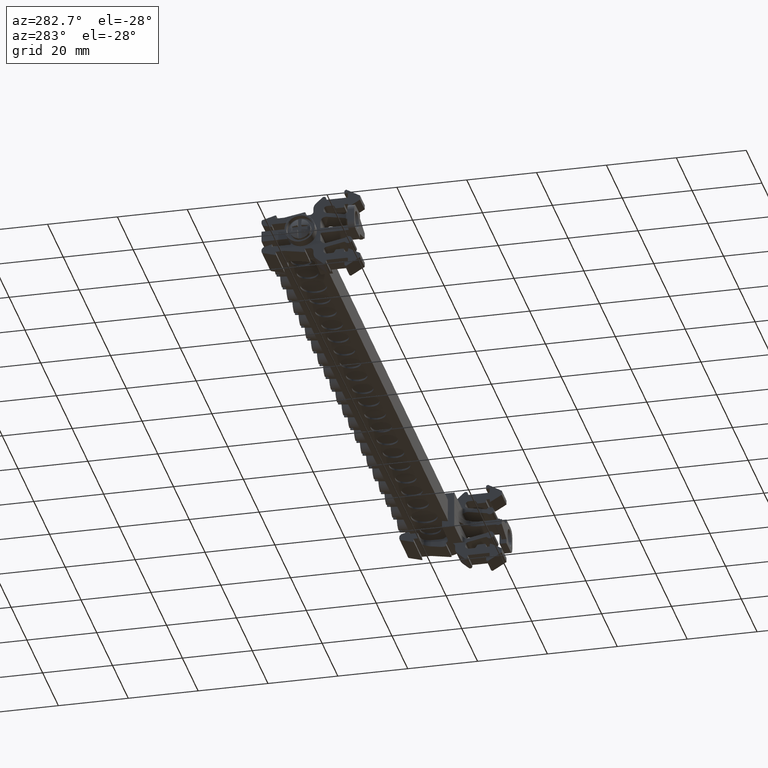
[diagram: clean part render]
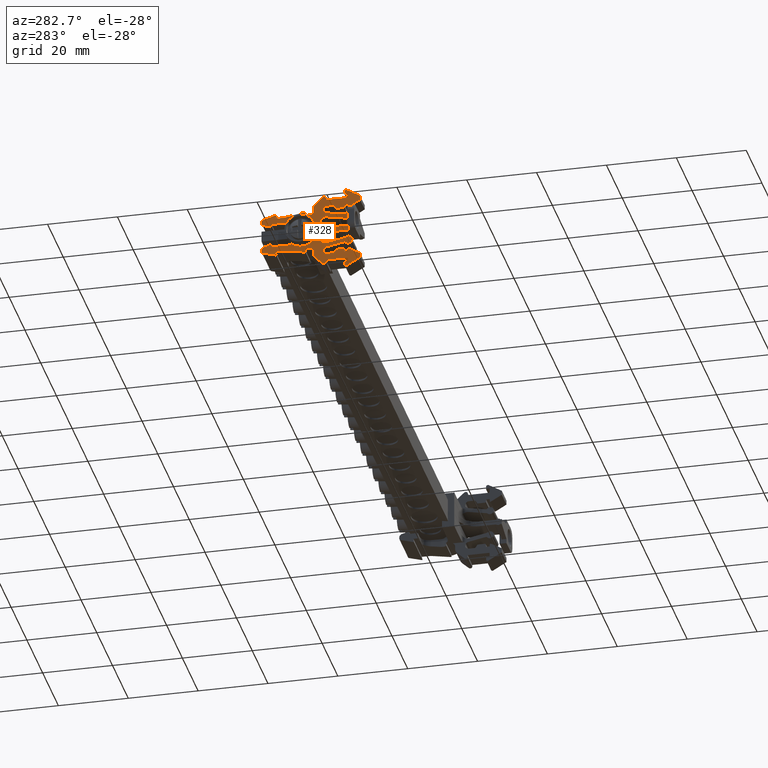
[diagram: same view with one face highlighted and labeled with its STEP entity id]
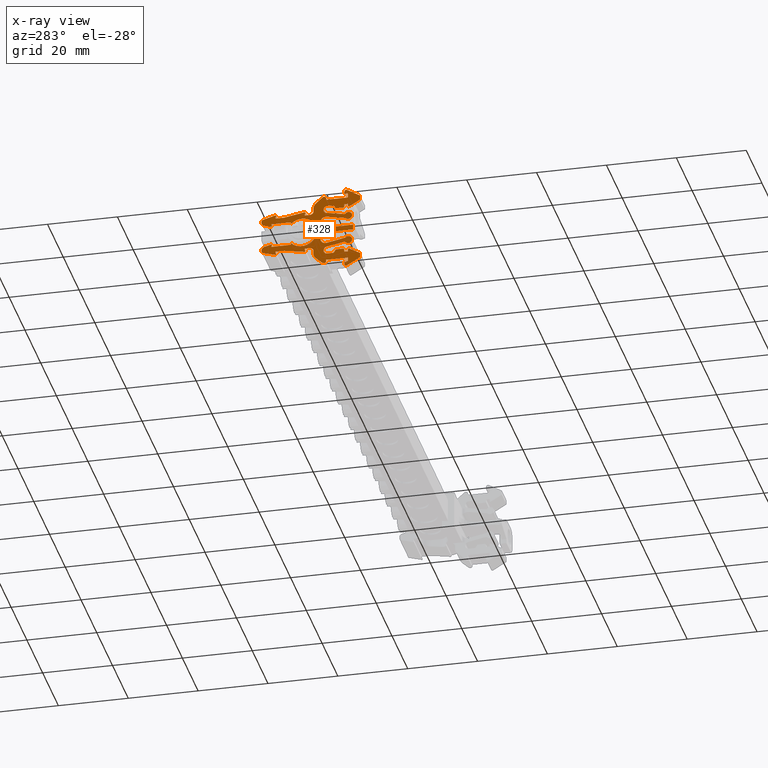
[diagram: x-ray of the same camera — body ghosted, the highlighted face saturated]
A machine part, auxiliary view. The second image highlights one B-rep face of the part: STEP entity #328.
The next image is the same camera in x-ray: the body ghosted, the highlighted face saturated — about 0% of this face is hidden behind the body in this view.
In plain terms, the highlighted planar face has unit normal (-1, -0, -0).
Its self-contained STEP definition (entity closure, byte-faithful):
#16 = EDGE_CURVE ( 'NONE', #6761, #6741, #22040, .T. ) ;
#18 = EDGE_CURVE ( 'NONE', #6798, #12039, #19312, .T. ) ;
#20 = EDGE_CURVE ( 'NONE', #6686, #6732, #22039, .T. ) ;
#21 = EDGE_CURVE ( 'NONE', #6698, #6785, #22021, .T. ) ;
#24 = EDGE_CURVE ( 'NONE', #6290, #12035, #19322, .T. ) ;
#26 = EDGE_CURVE ( 'NONE', #12034, #12001, #22033, .T. ) ;
#39 = EDGE_CURVE ( 'NONE', #12042, #6771, #22073, .T. ) ;
#55 = EDGE_CURVE ( 'NONE', #6687, #6758, #22143, .T. ) ;
#56 = EDGE_CURVE ( 'NONE', #6752, #6743, #22189, .T. ) ;
#57 = EDGE_CURVE ( 'NONE', #12067, #12056, #22193, .T. ) ;
#58 = EDGE_CURVE ( 'NONE', #6770, #6695, #19339, .T. ) ;
#328 = ADVANCED_FACE ( 'NONE', ( #7988 ), #7989, .T. ) ;
#459 = VECTOR ( 'NONE', #10307, 1000.000000000000000 ) ;
#486 = VECTOR ( 'NONE', #10352, 1000.000000000000000 ) ;
#491 = VECTOR ( 'NONE', #9039, 1000.000000000000100 ) ;
#600 = AXIS2_PLACEMENT_3D ( 'NONE', #9300, #9301, #9333 ) ;
#607 = AXIS2_PLACEMENT_3D ( 'NONE', #9335, #9308, #9311 ) ;
#610 = CIRCLE ( 'NONE', #620, 0.2000000000076732100 ) ;
#617 = CIRCLE ( 'NONE', #600, 0.5000000000182358600 ) ;
#618 = CIRCLE ( 'NONE', #607, 1.000000000036881200 ) ;
#620 = AXIS2_PLACEMENT_3D ( 'NONE', #9304, #9331, #9307 ) ;
#621 = VECTOR ( 'NONE', #9340, 1000.000000000000100 ) ;
#634 = AXIS2_PLACEMENT_3D ( 'NONE', #28745, #28757, #28768 ) ;
#663 = CIRCLE ( 'NONE', #668, 1.000000000036825700 ) ;
#668 = AXIS2_PLACEMENT_3D ( 'NONE', #28739, #28715, #28712 ) ;
#674 = CIRCLE ( 'NONE', #634, 0.2000000000074789200 ) ;
#679 = VECTOR ( 'NONE', #28861, 1000.000000000000000 ) ;
#694 = VECTOR ( 'NONE', #28830, 1000.000000000000000 ) ;
#697 = VECTOR ( 'NONE', #28799, 1000.000000000000100 ) ;
#701 = VECTOR ( 'NONE', #28823, 1000.000000000000000 ) ;
#703 = CIRCLE ( 'NONE', #705, 1.000000000036318900 ) ;
#705 = AXIS2_PLACEMENT_3D ( 'NONE', #28794, #28792, #28807 ) ;
#713 = VECTOR ( 'NONE', #28971, 1000.000000000000000 ) ;
#732 = AXIS2_PLACEMENT_3D ( 'NONE', #28970, #29006, #29001 ) ;
#733 = CIRCLE ( 'NONE', #732, 0.5000000000183746400 ) ;
#736 = AXIS2_PLACEMENT_3D ( 'NONE', #28956, #28946, #28928 ) ;
#741 = VECTOR ( 'NONE', #28941, 1000.000000000000000 ) ;
#760 = CIRCLE ( 'NONE', #736, 1.000000000036756200 ) ;
#783 = VECTOR ( 'NONE', #29157, 1000.000000000000000 ) ;
#793 = VECTOR ( 'NONE', #29138, 1000.000000000000000 ) ;
#828 = VECTOR ( 'NONE', #29282, 1000.000000000000200 ) ;
#846 = VECTOR ( 'NONE', #29304, 1000.000000000000100 ) ;
#854 = VECTOR ( 'NONE', #29280, 1000.000000000000000 ) ;
#865 = VECTOR ( 'NONE', #29328, 1000.000000000000000 ) ;
#1131 = EDGE_CURVE ( 'NONE', #6695, #6717, #19230, .T. ) ;
#1132 = EDGE_CURVE ( 'NONE', #6687, #6521, #19235, .T. ) ;
#1139 = EDGE_CURVE ( 'NONE', #6733, #6527, #19243, .T. ) ;
#1149 = EDGE_CURVE ( 'NONE', #6531, #6743, #19254, .T. ) ;
#1164 = EDGE_CURVE ( 'NONE', #6713, #6542, #19274, .T. ) ;
#1183 = EDGE_CURVE ( 'NONE', #6705, #6770, #19587, .T. ) ;
#1185 = EDGE_CURVE ( 'NONE', #6771, #6292, #19759, .T. ) ;
#1193 = EDGE_CURVE ( 'NONE', #6571, #6793, #10323, .T. ) ;
#1195 = EDGE_CURVE ( 'NONE', #6761, #6529, #19238, .T. ) ;
#1197 = EDGE_CURVE ( 'NONE', #6526, #6698, #19608, .T. ) ;
#1202 = EDGE_CURVE ( 'NONE', #6686, #6535, #5314, .T. ) ;
#1204 = EDGE_CURVE ( 'NONE', #6757, #6574, #10378, .T. ) ;
#1206 = EDGE_CURVE ( 'NONE', #6787, #6738, #5337, .T. ) ;
#1210 = EDGE_CURVE ( 'NONE', #6513, #6714, #5323, .T. ) ;
#1218 = EDGE_CURVE ( 'NONE', #6533, #6758, #5346, .T. ) ;
#1220 = EDGE_CURVE ( 'NONE', #6785, #6523, #10493, .T. ) ;
#1221 = EDGE_CURVE ( 'NONE', #6494, #6732, #5328, .T. ) ;
#1225 = EDGE_CURVE ( 'NONE', #6715, #6730, #10553, .T. ) ;
#1227 = EDGE_CURVE ( 'NONE', #6788, #6798, #10511, .T. ) ;
#1235 = EDGE_CURVE ( 'NONE', #6754, #6696, #5348, .T. ) ;
#1241 = EDGE_CURVE ( 'NONE', #6579, #6854, #5394, .T. ) ;
#1244 = EDGE_CURVE ( 'NONE', #6563, #6748, #5373, .T. ) ;
#1252 = EDGE_CURVE ( 'NONE', #6795, #6772, #5366, .T. ) ;
#1258 = EDGE_CURVE ( 'NONE', #6741, #6796, #10475, .T. ) ;
#1261 = EDGE_CURVE ( 'NONE', #6764, #6515, #5356, .T. ) ;
#1264 = EDGE_CURVE ( 'NONE', #6585, #6778, #10496, .T. ) ;
#1274 = EDGE_CURVE ( 'NONE', #6752, #6514, #5445, .T. ) ;
#1276 = EDGE_CURVE ( 'NONE', #6746, #6602, #5446, .T. ) ;
#1277 = EDGE_CURVE ( 'NONE', #6568, #6760, #5431, .T. ) ;
#1279 = EDGE_CURVE ( 'NONE', #6786, #15615, #10611, .T. ) ;
#1281 = EDGE_CURVE ( 'NONE', #6768, #6765, #5425, .T. ) ;
#1431 = EDGE_CURVE ( 'NONE', #6493, #6521, #8639, .T. ) ;
#1436 = EDGE_CURVE ( 'NONE', #6526, #6397, #8638, .T. ) ;
#1442 = EDGE_CURVE ( 'NONE', #6392, #6542, #8678, .T. ) ;
#1446 = EDGE_CURVE ( 'NONE', #6579, #6389, #8674, .T. ) ;
#1453 = EDGE_CURVE ( 'NONE', #6413, #6531, #8691, .T. ) ;
#1463 = EDGE_CURVE ( 'NONE', #6591, #6568, #8749, .T. ) ;
#1464 = EDGE_CURVE ( 'NONE', #6470, #6585, #8752, .T. ) ;
#1466 = EDGE_CURVE ( 'NONE', #6356, #6535, #8741, .T. ) ;
#1469 = EDGE_CURVE ( 'NONE', #6493, #6523, #5708, .T. ) ;
#1472 = EDGE_CURVE ( 'NONE', #6367, #6513, #8731, .T. ) ;
#1478 = EDGE_CURVE ( 'NONE', #6422, #6571, #8792, .T. ) ;
#1480 = EDGE_CURVE ( 'NONE', #6494, #6372, #8793, .T. ) ;
#1481 = EDGE_CURVE ( 'NONE', #6514, #6467, #8763, .T. ) ;
#1484 = EDGE_CURVE ( 'NONE', #6359, #6563, #8780, .T. ) ;
#1489 = EDGE_CURVE ( 'NONE', #6574, #6591, #5719, .T. ) ;
#1492 = EDGE_CURVE ( 'NONE', #6420, #6533, #27246, .T. ) ;
#1501 = EDGE_CURVE ( 'NONE', #6586, #6578, #26876, .T. ) ;
#1503 = EDGE_CURVE ( 'NONE', #6583, #6471, #5677, .T. ) ;
#1508 = EDGE_CURVE ( 'NONE', #6391, #6602, #26916, .T. ) ;
#1511 = EDGE_CURVE ( 'NONE', #6515, #6415, #26914, .T. ) ;
#1523 = EDGE_CURVE ( 'NONE', #6379, #6529, #26954, .T. ) ;
#1526 = EDGE_CURVE ( 'NONE', #6460, #6590, #5747, .T. ) ;
#1533 = EDGE_CURVE ( 'NONE', #6548, #6449, #22896, .T. ) ;
#1535 = EDGE_CURVE ( 'NONE', #6565, #6596, #27022, .T. ) ;
#1543 = EDGE_CURVE ( 'NONE', #6552, #6565, #27042, .T. ) ;
#1550 = EDGE_CURVE ( 'NONE', #6572, #6586, #27047, .T. ) ;
#1581 = EDGE_CURVE ( 'NONE', #6564, #6440, #22880, .T. ) ;
#5208 = EDGE_CURVE ( 'NONE', #12073, #6793, #26842, .T. ) ;
#5210 = EDGE_CURVE ( 'NONE', #11994, #12082, #26770, .T. ) ;
#5247 = DIRECTION ( 'NONE',  ( 7.696129042182730100E-015, -0.8660253871030958500, 0.5000000288929320500 ) ) ;
#5264 = EDGE_CURVE ( 'NONE', #6713, #6715, #26778, .T. ) ;
#5272 = EDGE_CURVE ( 'NONE', #6696, #6705, #10633, .T. ) ;
#5287 = EDGE_CURVE ( 'NONE', #6730, #6714, #30817, .T. ) ;
#5292 = EDGE_CURVE ( 'NONE', #11951, #12051, #30848, .T. ) ;
#5310 = EDGE_CURVE ( 'NONE', #6717, #6733, #30939, .T. ) ;
#5314 = CIRCLE ( 'NONE', #5342, 0.3000000000110622500 ) ;
#5317 = VECTOR ( 'NONE', #10421, 1000.000000000000000 ) ;
#5323 = CIRCLE ( 'NONE', #5332, 0.5000000000183955100 ) ;
#5324 = AXIS2_PLACEMENT_3D ( 'NONE', #10469, #10459, #10476 ) ;
#5326 = VECTOR ( 'NONE', #10497, 1000.000000000000000 ) ;
#5328 = CIRCLE ( 'NONE', #5397, 0.3000000000112565400 ) ;
#5332 = AXIS2_PLACEMENT_3D ( 'NONE', #10470, #10451, #10486 ) ;
#5333 = AXIS2_PLACEMENT_3D ( 'NONE', #10379, #10427, #10411 ) ;
#5337 = CIRCLE ( 'NONE', #5333, 1.500000000055193200 ) ;
#5342 = AXIS2_PLACEMENT_3D ( 'NONE', #10357, #10362, #10365 ) ;
#5346 = CIRCLE ( 'NONE', #5324, 2.000000000073456800 ) ;
#5348 = CIRCLE ( 'NONE', #5402, 1.500000000055352800 ) ;
#5356 = CIRCLE ( 'NONE', #5358, 0.2000000000074164700 ) ;
#5358 = AXIS2_PLACEMENT_3D ( 'NONE', #10438, #10445, #10480 ) ;
#5365 = VECTOR ( 'NONE', #10558, 1000.000000000000000 ) ;
#5366 = CIRCLE ( 'NONE', #5374, 0.5000000000183955100 ) ;
#5368 = VECTOR ( 'NONE', #10462, 1000.000000000000000 ) ;
#5373 = CIRCLE ( 'NONE', #5387, 0.2000000000073956500 ) ;
#5374 = AXIS2_PLACEMENT_3D ( 'NONE', #10942, #10924, #10922 ) ;
#5379 = AXIS2_PLACEMENT_3D ( 'NONE', #10582, #10584, #10591 ) ;
#5381 = VECTOR ( 'NONE', #10502, 1000.000000000000000 ) ;
#5387 = AXIS2_PLACEMENT_3D ( 'NONE', #10610, #10595, #10640 ) ;
#5394 = CIRCLE ( 'NONE', #5379, 1.000000000036978200 ) ;
#5396 = VECTOR ( 'NONE', #10498, 1000.000000000000000 ) ;
#5397 = AXIS2_PLACEMENT_3D ( 'NONE', #10568, #10549, #10552 ) ;
#5402 = AXIS2_PLACEMENT_3D ( 'NONE', #10522, #10525, #10527 ) ;
#5407 = AXIS2_PLACEMENT_3D ( 'NONE', #10581, #10630, #10601 ) ;
#5408 = AXIS2_PLACEMENT_3D ( 'NONE', #10500, #10569, #10557 ) ;
#5411 = VECTOR ( 'NONE', #10620, 1000.000000000000000 ) ;
#5425 = CIRCLE ( 'NONE', #5456, 0.5000000000183052500 ) ;
#5431 = CIRCLE ( 'NONE', #5407, 0.4999998951078846200 ) ;
#5445 = CIRCLE ( 'NONE', #5408, 0.3000000000116104200 ) ;
#5446 = CIRCLE ( 'NONE', #5457, 2.000000000073672200 ) ;
#5456 = AXIS2_PLACEMENT_3D ( 'NONE', #10627, #10583, #10632 ) ;
#5457 = AXIS2_PLACEMENT_3D ( 'NONE', #10501, #10532, #10542 ) ;
#5627 = VECTOR ( 'NONE', #8647, 1000.000000000000000 ) ;
#5634 = VECTOR ( 'NONE', #8671, 1000.000000000000100 ) ;
#5635 = VECTOR ( 'NONE', #8701, 1000.000000000000000 ) ;
#5657 = VECTOR ( 'NONE', #8642, 1000.000000000000000 ) ;
#5659 = VECTOR ( 'NONE', #8675, 1000.000000000000100 ) ;
#5668 = AXIS2_PLACEMENT_3D ( 'NONE', #26896, #26894, #26905 ) ;
#5669 = AXIS2_PLACEMENT_3D ( 'NONE', #8727, #8775, #8787 ) ;
#5670 = VECTOR ( 'NONE', #8770, 1000.000000000000000 ) ;
#5677 = CIRCLE ( 'NONE', #5668, 0.5000000000184058300 ) ;
#5687 = VECTOR ( 'NONE', #8753, 1000.000000000000100 ) ;
#5690 = VECTOR ( 'NONE', #8778, 1000.000000000000200 ) ;
#5691 = VECTOR ( 'NONE', #8767, 1000.000000000000100 ) ;
#5704 = VECTOR ( 'NONE', #8744, 1000.000000000000100 ) ;
#5705 = VECTOR ( 'NONE', #26890, 1000.000000000000200 ) ;
#5707 = VECTOR ( 'NONE', #8738, 1000.000000000000000 ) ;
#5708 = CIRCLE ( 'NONE', #5669, 0.5000000000183885100 ) ;
#5710 = AXIS2_PLACEMENT_3D ( 'NONE', #27270, #27266, #27302 ) ;
#5711 = VECTOR ( 'NONE', #8766, 1000.000000000000100 ) ;
#5712 = VECTOR ( 'NONE', #27277, 1000.000000000000000 ) ;
#5718 = VECTOR ( 'NONE', #8762, 1000.000000000000100 ) ;
#5719 = CIRCLE ( 'NONE', #5710, 0.5000000000187145900 ) ;
#5721 = VECTOR ( 'NONE', #27060, 1000.000000000000000 ) ;
#5728 = VECTOR ( 'NONE', #27048, 1000.000000000000000 ) ;
#5735 = VECTOR ( 'NONE', #26906, 1000.000000000000000 ) ;
#5747 = CIRCLE ( 'NONE', #5773, 0.5000000000186903800 ) ;
#5765 = VECTOR ( 'NONE', #26929, 1000.000000000000000 ) ;
#5769 = VECTOR ( 'NONE', #27015, 1000.000000000000100 ) ;
#5770 = VECTOR ( 'NONE', #26987, 1000.000000000000000 ) ;
#5773 = AXIS2_PLACEMENT_3D ( 'NONE', #26990, #26953, #26955 ) ;
#5937 = VECTOR ( 'NONE', #26769, 1000.000000000000100 ) ;
#5941 = VECTOR ( 'NONE', #26788, 1000.000000000000100 ) ;
#5943 = VECTOR ( 'NONE', #30861, 1000.000000000000100 ) ;
#5964 = VECTOR ( 'NONE', #10645, 1000.000000000000100 ) ;
#5983 = VECTOR ( 'NONE', #5247, 1000.000000000000200 ) ;
#6003 = VECTOR ( 'NONE', #30824, 1000.000000000000000 ) ;
#6013 = VECTOR ( 'NONE', #30950, 1000.000000000000200 ) ;
#6278 = VERTEX_POINT ( 'NONE', #17130 ) ;
#6289 = VERTEX_POINT ( 'NONE', #17131 ) ;
#6290 = VERTEX_POINT ( 'NONE', #17132 ) ;
#6292 = VERTEX_POINT ( 'NONE', #17134 ) ;
#6298 = VERTEX_POINT ( 'NONE', #17176 ) ;
#6299 = VERTEX_POINT ( 'NONE', #17171 ) ;
#6301 = VERTEX_POINT ( 'NONE', #17158 ) ;
#6332 = VERTEX_POINT ( 'NONE', #17186 ) ;
#6336 = VERTEX_POINT ( 'NONE', #17149 ) ;
#6340 = VERTEX_POINT ( 'NONE', #17174 ) ;
#6356 = VERTEX_POINT ( 'NONE', #17195 ) ;
#6359 = VERTEX_POINT ( 'NONE', #17215 ) ;
#6364 = VERTEX_POINT ( 'NONE', #17211 ) ;
#6367 = VERTEX_POINT ( 'NONE', #17244 ) ;
#6372 = VERTEX_POINT ( 'NONE', #17206 ) ;
#6377 = VERTEX_POINT ( 'NONE', #17234 ) ;
#6379 = VERTEX_POINT ( 'NONE', #17224 ) ;
#6386 = VERTEX_POINT ( 'NONE', #17205 ) ;
#6389 = VERTEX_POINT ( 'NONE', #17231 ) ;
#6391 = VERTEX_POINT ( 'NONE', #17217 ) ;
#6392 = VERTEX_POINT ( 'NONE', #17257 ) ;
#6395 = VERTEX_POINT ( 'NONE', #17233 ) ;
#6396 = VERTEX_POINT ( 'NONE', #17213 ) ;
#6397 = VERTEX_POINT ( 'NONE', #17226 ) ;
#6413 = VERTEX_POINT ( 'NONE', #17209 ) ;
#6415 = VERTEX_POINT ( 'NONE', #17221 ) ;
#6420 = VERTEX_POINT ( 'NONE', #22328 ) ;
#6422 = VERTEX_POINT ( 'NONE', #22744 ) ;
#6425 = VERTEX_POINT ( 'NONE', #29387 ) ;
#6432 = VERTEX_POINT ( 'NONE', #7207 ) ;
#6440 = VERTEX_POINT ( 'NONE', #29388 ) ;
#6449 = VERTEX_POINT ( 'NONE', #9383 ) ;
#6460 = VERTEX_POINT ( 'NONE', #9359 ) ;
#6467 = VERTEX_POINT ( 'NONE', #9360 ) ;
#6470 = VERTEX_POINT ( 'NONE', #9387 ) ;
#6471 = VERTEX_POINT ( 'NONE', #9367 ) ;
#6493 = VERTEX_POINT ( 'NONE', #9361 ) ;
#6494 = VERTEX_POINT ( 'NONE', #9371 ) ;
#6513 = VERTEX_POINT ( 'NONE', #9444 ) ;
#6514 = VERTEX_POINT ( 'NONE', #9430 ) ;
#6515 = VERTEX_POINT ( 'NONE', #9425 ) ;
#6521 = VERTEX_POINT ( 'NONE', #9442 ) ;
#6523 = VERTEX_POINT ( 'NONE', #9474 ) ;
#6526 = VERTEX_POINT ( 'NONE', #9460 ) ;
#6527 = VERTEX_POINT ( 'NONE', #9432 ) ;
#6529 = VERTEX_POINT ( 'NONE', #9472 ) ;
#6531 = VERTEX_POINT ( 'NONE', #9415 ) ;
#6533 = VERTEX_POINT ( 'NONE', #9420 ) ;
#6535 = VERTEX_POINT ( 'NONE', #9443 ) ;
#6542 = VERTEX_POINT ( 'NONE', #9414 ) ;
#6548 = VERTEX_POINT ( 'NONE', #9464 ) ;
#6552 = VERTEX_POINT ( 'NONE', #9417 ) ;
#6563 = VERTEX_POINT ( 'NONE', #9445 ) ;
#6564 = VERTEX_POINT ( 'NONE', #9447 ) ;
#6565 = VERTEX_POINT ( 'NONE', #9470 ) ;
#6568 = VERTEX_POINT ( 'NONE', #9455 ) ;
#6571 = VERTEX_POINT ( 'NONE', #9534 ) ;
#6572 = VERTEX_POINT ( 'NONE', #9528 ) ;
#6574 = VERTEX_POINT ( 'NONE', #9479 ) ;
#6578 = VERTEX_POINT ( 'NONE', #9521 ) ;
#6579 = VERTEX_POINT ( 'NONE', #9487 ) ;
#6583 = VERTEX_POINT ( 'NONE', #9513 ) ;
#6585 = VERTEX_POINT ( 'NONE', #9483 ) ;
#6586 = VERTEX_POINT ( 'NONE', #9502 ) ;
#6590 = VERTEX_POINT ( 'NONE', #9515 ) ;
#6591 = VERTEX_POINT ( 'NONE', #9484 ) ;
#6596 = VERTEX_POINT ( 'NONE', #9526 ) ;
#6602 = VERTEX_POINT ( 'NONE', #9538 ) ;
#6686 = VERTEX_POINT ( 'NONE', #9563 ) ;
#6687 = VERTEX_POINT ( 'NONE', #9584 ) ;
#6695 = VERTEX_POINT ( 'NONE', #9545 ) ;
#6696 = VERTEX_POINT ( 'NONE', #9552 ) ;
#6698 = VERTEX_POINT ( 'NONE', #9564 ) ;
#6705 = VERTEX_POINT ( 'NONE', #9610 ) ;
#6713 = VERTEX_POINT ( 'NONE', #9617 ) ;
#6714 = VERTEX_POINT ( 'NONE', #9623 ) ;
#6715 = VERTEX_POINT ( 'NONE', #9641 ) ;
#6717 = VERTEX_POINT ( 'NONE', #9649 ) ;
#6730 = VERTEX_POINT ( 'NONE', #9626 ) ;
#6732 = VERTEX_POINT ( 'NONE', #9661 ) ;
#6733 = VERTEX_POINT ( 'NONE', #9619 ) ;
#6738 = VERTEX_POINT ( 'NONE', #9656 ) ;
#6741 = VERTEX_POINT ( 'NONE', #9638 ) ;
#6743 = VERTEX_POINT ( 'NONE', #9613 ) ;
#6746 = VERTEX_POINT ( 'NONE', #9644 ) ;
#6748 = VERTEX_POINT ( 'NONE', #9648 ) ;
#6752 = VERTEX_POINT ( 'NONE', #9628 ) ;
#6754 = VERTEX_POINT ( 'NONE', #9629 ) ;
#6757 = VERTEX_POINT ( 'NONE', #9630 ) ;
#6758 = VERTEX_POINT ( 'NONE', #9666 ) ;
#6760 = VERTEX_POINT ( 'NONE', #9664 ) ;
#6761 = VERTEX_POINT ( 'NONE', #9665 ) ;
#6764 = VERTEX_POINT ( 'NONE', #9690 ) ;
#6765 = VERTEX_POINT ( 'NONE', #9732 ) ;
#6768 = VERTEX_POINT ( 'NONE', #9702 ) ;
#6770 = VERTEX_POINT ( 'NONE', #9696 ) ;
#6771 = VERTEX_POINT ( 'NONE', #9698 ) ;
#6772 = VERTEX_POINT ( 'NONE', #9669 ) ;
#6778 = VERTEX_POINT ( 'NONE', #9697 ) ;
#6785 = VERTEX_POINT ( 'NONE', #9699 ) ;
#6786 = VERTEX_POINT ( 'NONE', #9686 ) ;
#6787 = VERTEX_POINT ( 'NONE', #9715 ) ;
#6788 = VERTEX_POINT ( 'NONE', #9687 ) ;
#6793 = VERTEX_POINT ( 'NONE', #9701 ) ;
#6795 = VERTEX_POINT ( 'NONE', #9710 ) ;
#6796 = VERTEX_POINT ( 'NONE', #9694 ) ;
#6798 = VERTEX_POINT ( 'NONE', #9722 ) ;
#6854 = VERTEX_POINT ( 'NONE', #9739 ) ;
#7207 = CARTESIAN_POINT ( 'NONE',  ( -212.0303964936862500, -48.21707794392055000, 102.5194420663997300 ) ) ;
#7988 = FACE_OUTER_BOUND ( 'NONE', #21835, .T. ) ;
#7989 = PLANE ( 'NONE',  #19647 ) ;
#8013 = CARTESIAN_POINT ( 'NONE',  ( -212.0303964936862000, -45.88583688173678600, 68.30975947004732500 ) ) ;
#8014 = DIRECTION ( 'NONE',  ( -1.000000000000000000, -1.111883425166246100E-014, -2.470852055924995400E-015 ) ) ;
#8015 = DIRECTION ( 'NONE',  ( 1.111883425166246100E-014, -1.000000000000000000, 0.0000000000000000000 ) ) ;
#8105 = VECTOR ( 'NONE', #26576, 1000.000000000000100 ) ;
#8117 = VECTOR ( 'NONE', #26591, 1000.000000000000100 ) ;
#8119 = VECTOR ( 'NONE', #26616, 1000.000000000000200 ) ;
#8142 = VECTOR ( 'NONE', #26719, 1000.000000000000100 ) ;
#8167 = VECTOR ( 'NONE', #26697, 1000.000000000000000 ) ;
#8186 = VECTOR ( 'NONE', #26651, 1000.000000000000000 ) ;
#8189 = VECTOR ( 'NONE', #26711, 1000.000000000000000 ) ;
#8541 = AXIS2_PLACEMENT_3D ( 'NONE', #25521, #25548, #25523 ) ;
#8610 = VECTOR ( 'NONE', #26291, 1000.000000000000000 ) ;
#8633 = CARTESIAN_POINT ( 'NONE',  ( -212.0303964936862800, -45.88583688173678600, 106.5354419102341300 ) ) ;
#8638 = LINE ( 'NONE', #8644, #5627 ) ;
#8639 = LINE ( 'NONE', #8633, #5657 ) ;
#8642 = DIRECTION ( 'NONE',  ( -1.111883425166246100E-014, 1.000000000000000000, -0.0000000000000000000 ) ) ;
#8644 = CARTESIAN_POINT ( 'NONE',  ( -212.0303964936861700, -55.16053989854657400, 68.30975947004732500 ) ) ;
#8647 = DIRECTION ( 'NONE',  ( -5.942032602617936000E-045, 5.293124366377568200E-031, 1.000000000000000000 ) ) ;
#8668 = CARTESIAN_POINT ( 'NONE',  ( -212.0303964936862000, -48.21710104535917900, 68.30976215696874500 ) ) ;
#8671 = DIRECTION ( 'NONE',  ( 0.0000000000000000000, -1.085070571871616700E-006, -0.9999999999994112500 ) ) ;
#8674 = LINE ( 'NONE', #8668, #5634 ) ;
#8675 = DIRECTION ( 'NONE',  ( 0.0000000000000000000, -0.08715566094580627600, -0.9961947052484767500 ) ) ;
#8678 = LINE ( 'NONE', #8681, #5659 ) ;
#8681 = CARTESIAN_POINT ( 'NONE',  ( -212.0303964936861700, -55.16053996394597900, 103.5194419876537200 ) ) ;
#8691 = LINE ( 'NONE', #8707, #5635 ) ;
#8701 = DIRECTION ( 'NONE',  ( 0.0000000000000000000, -0.4999997977809528300, 0.8660255205356285300 ) ) ;
#8707 = CARTESIAN_POINT ( 'NONE',  ( -212.0303964936861700, -40.97375220469492500, 70.97831986353092800 ) ) ;
#8716 = CARTESIAN_POINT ( 'NONE',  ( -212.0303964936862300, -51.24545566317977600, 103.2694420537113300 ) ) ;
#8727 = CARTESIAN_POINT ( 'NONE',  ( -212.0303964936862800, -48.39155189802377800, 106.0354419102161400 ) ) ;
#8730 = CARTESIAN_POINT ( 'NONE',  ( -212.0303964936862800, -37.25002772318053000, 69.80688172673724500 ) ) ;
#8731 = LINE ( 'NONE', #8758, #5670 ) ;
#8735 = CARTESIAN_POINT ( 'NONE',  ( -212.0303964936862300, -45.74087650197937900, 85.50344835873244200 ) ) ;
#8738 = DIRECTION ( 'NONE',  ( 0.0000000000000000000, 0.9999999999973450100, 2.304348000120185200E-006 ) ) ;
#8741 = LINE ( 'NONE', #8716, #5704 ) ;
#8744 = DIRECTION ( 'NONE',  ( 0.0000000000000000000, -0.4999999694212182200, -0.8660254214391057700 ) ) ;
#8749 = LINE ( 'NONE', #8735, #5707 ) ;
#8752 = LINE ( 'NONE', #8730, #5687 ) ;
#8753 = DIRECTION ( 'NONE',  ( -5.025963780430191900E-016, -0.1736440734325845100, 0.9848084766906402000 ) ) ;
#8758 = CARTESIAN_POINT ( 'NONE',  ( -212.0303964936862000, -54.16053198321218100, 68.30975774108414100 ) ) ;
#8762 = DIRECTION ( 'NONE',  ( 0.0000000000000000000, -0.1736525494605639700, -0.9848069821370308800 ) ) ;
#8763 = LINE ( 'NONE', #8800, #5690 ) ;
#8764 = CARTESIAN_POINT ( 'NONE',  ( -212.0303964936862000, -54.09701029758157600, 102.7932954076425300 ) ) ;
#8766 = DIRECTION ( 'NONE',  ( 0.0000000000000000000, -0.08715569266313325000, 0.9961947024735724500 ) ) ;
#8767 = DIRECTION ( 'NONE',  ( 0.0000000000000000000, -0.08715553781155270500, 0.9961947160213102700 ) ) ;
#8770 = DIRECTION ( 'NONE',  ( 0.0000000000000000000, -2.018709680339304600E-007, 0.9999999999999796800 ) ) ;
#8775 = DIRECTION ( 'NONE',  ( 1.000000000000000000, 1.122594556886344000E-014, 2.537798099621990400E-015 ) ) ;
#8778 = DIRECTION ( 'NONE',  ( 0.0000000000000000000, -0.08715550509949666900, -0.9961947188832369600 ) ) ;
#8780 = LINE ( 'NONE', #8796, #5711 ) ;
#8783 = CARTESIAN_POINT ( 'NONE',  ( -212.0303964936862500, -46.72726588057458500, 68.48369803223982900 ) ) ;
#8787 = DIRECTION ( 'NONE',  ( 0.0000000000000000000, 1.000000000000000000, 0.0000000000000000000 ) ) ;
#8792 = LINE ( 'NONE', #8783, #5718 ) ;
#8793 = LINE ( 'NONE', #8764, #5691 ) ;
#8796 = CARTESIAN_POINT ( 'NONE',  ( -212.0303964936861400, -53.33319914363468000, 67.63282837851792800 ) ) ;
#8800 = CARTESIAN_POINT ( 'NONE',  ( -212.0303964936861400, -55.85016407138748200, 69.20689438627283600 ) ) ;
#9037 = LINE ( 'NONE', #9043, #491 ) ;
#9039 = DIRECTION ( 'NONE',  ( 0.0000000000000000000, -0.9999999999999937800, 1.110506526971359100E-007 ) ) ;
#9043 = CARTESIAN_POINT ( 'NONE',  ( -212.0303964936862000, -45.74083463743838300, 88.51944140780052800 ) ) ;
#9148 = CARTESIAN_POINT ( 'NONE',  ( -212.0303964936866800, -30.45549407222642200, 91.88636542386332500 ) ) ;
#9149 = CARTESIAN_POINT ( 'NONE',  ( -212.0303964936862800, -30.44510178767202600, 91.76910159034784400 ) ) ;
#9156 = CARTESIAN_POINT ( 'NONE',  ( -212.0303964936866800, -30.44846174578567500, 91.81641662640664900 ) ) ;
#9158 = CARTESIAN_POINT ( 'NONE',  ( -212.0303964936863700, -30.48339834810887800, 91.98102457358484700 ) ) ;
#9172 = CARTESIAN_POINT ( 'NONE',  ( -212.0303964936867400, -30.44174182955843100, 91.72178655428894000 ) ) ;
#9180 = CARTESIAN_POINT ( 'NONE',  ( -212.0303964936863700, -30.44258989760698200, 91.69826748458918100 ) ) ;
#9209 = CARTESIAN_POINT ( 'NONE',  ( -212.0303964936862800, -30.44510178767202600, 91.76910159034784400 ) ) ;
#9281 = LINE ( 'NONE', #9287, #621 ) ;
#9287 = CARTESIAN_POINT ( 'NONE',  ( -212.0303964936861400, -54.92581033235777700, 85.16541881952265700 ) ) ;
#9300 = CARTESIAN_POINT ( 'NONE',  ( -212.0303964936861700, -50.81244311099888500, 89.01944198712652700 ) ) ;
#9301 = DIRECTION ( 'NONE',  ( 1.000000000000000000, 1.122594556886344000E-014, 2.537798099621990400E-015 ) ) ;
#9304 = CARTESIAN_POINT ( 'NONE',  ( -212.0303964936861100, -54.96053997683259200, 85.36238036855623100 ) ) ;
#9307 = DIRECTION ( 'NONE',  ( 0.0000000000000000000, 1.000000000000000000, 0.0000000000000000000 ) ) ;
#9308 = DIRECTION ( 'NONE',  ( 1.000000000000000000, 1.122594556886344000E-014, 2.537798099621990400E-015 ) ) ;
#9311 = DIRECTION ( 'NONE',  ( 0.0000000000000000000, 1.000000000000000000, 0.0000000000000000000 ) ) ;
#9331 = DIRECTION ( 'NONE',  ( 1.000000000000000000, 1.122594556886344000E-014, 2.537798099621990400E-015 ) ) ;
#9333 = DIRECTION ( 'NONE',  ( 0.0000000000000000000, 1.000000000000000000, 0.0000000000000000000 ) ) ;
#9335 = CARTESIAN_POINT ( 'NONE',  ( -212.0303964936862800, -44.29758946941943500, 89.76944206850844000 ) ) ;
#9340 = DIRECTION ( 'NONE',  ( -3.571796251056784200E-014, 0.9848077451303186600, 0.1736482223673402900 ) ) ;
#9359 = CARTESIAN_POINT ( 'NONE',  ( -212.0303964936864000, -30.44258989760675900, 100.7694419875523400 ) ) ;
#9360 = CARTESIAN_POINT ( 'NONE',  ( -212.0303964936861700, -54.16053975375923100, 88.51944177150598100 ) ) ;
#9361 = CARTESIAN_POINT ( 'NONE',  ( -212.0303964936862800, -48.39155216239645100, 106.5354419102341800 ) ) ;
#9367 = CARTESIAN_POINT ( 'NONE',  ( -212.0303964936863700, -30.44258989760699000, 91.26944198720973100 ) ) ;
#9371 = CARTESIAN_POINT ( 'NONE',  ( -212.0303964936861700, -54.09701029758157600, 102.7932954076425200 ) ) ;
#9383 = CARTESIAN_POINT ( 'NONE',  ( -212.0303964936863700, -30.53406795506208800, 92.11611772719751900 ) ) ;
#9387 = CARTESIAN_POINT ( 'NONE',  ( -212.0303964936862800, -42.79759071436554800, 101.2694419424453300 ) ) ;
#9414 = CARTESIAN_POINT ( 'NONE',  ( -212.0303964936861400, -55.22216519522433500, 102.8150617048015400 ) ) ;
#9415 = CARTESIAN_POINT ( 'NONE',  ( -212.0303964936861700, -51.59186575260472600, 89.36944192647128200 ) ) ;
#9417 = CARTESIAN_POINT ( 'NONE',  ( -212.0303964936863700, -34.38262018978451800, 102.2694420894122900 ) ) ;
#9420 = CARTESIAN_POINT ( 'NONE',  ( -212.0303964936862800, -45.29758989815920200, 103.1384948378470100 ) ) ;
#9425 = CARTESIAN_POINT ( 'NONE',  ( -212.0303964936861100, -55.16053997684017700, 86.31144210965227600 ) ) ;
#9430 = CARTESIAN_POINT ( 'NONE',  ( -212.0303964936861700, -54.09701030872948700, 89.24558864610632700 ) ) ;
#9432 = CARTESIAN_POINT ( 'NONE',  ( -212.0303964936862300, -48.21707803136069300, 102.3582727133003400 ) ) ;
#9442 = CARTESIAN_POINT ( 'NONE',  ( -212.0303964936862800, -48.24130174602312600, 106.5354419896785300 ) ) ;
#9443 = CARTESIAN_POINT ( 'NONE',  ( -212.0303964936862300, -51.59186573949755000, 102.6694421523491100 ) ) ;
#9444 = CARTESIAN_POINT ( 'NONE',  ( -212.0303964936862000, -54.16053989850947700, 107.5194438271384900 ) ) ;
#9445 = CARTESIAN_POINT ( 'NONE',  ( -212.0303964936861400, -55.22216525566513900, 89.22382233952214400 ) ) ;
#9447 = CARTESIAN_POINT ( 'NONE',  ( -212.0303964936863700, -30.66891902962647600, 99.70702896609982700 ) ) ;
#9455 = CARTESIAN_POINT ( 'NONE',  ( -212.0303964936862300, -48.24130023330281600, 85.50344259688594700 ) ) ;
#9460 = CARTESIAN_POINT ( 'NONE',  ( -212.0303964936861700, -55.16053989854658100, 105.7274420178028400 ) ) ;
#9464 = CARTESIAN_POINT ( 'NONE',  ( -212.0303964936864000, -30.88215368367842800, 92.52646507583762100 ) ) ;
#9470 = CARTESIAN_POINT ( 'NONE',  ( -212.0303964936863700, -34.61891742303019000, 102.2694420894123400 ) ) ;
#9472 = CARTESIAN_POINT ( 'NONE',  ( -212.0303964936861100, -54.16053983258144200, 84.51944025711382800 ) ) ;
#9474 = CARTESIAN_POINT ( 'NONE',  ( -212.0303964936862800, -48.89155204794910500, 106.0354419896604400 ) ) ;
#9479 = CARTESIAN_POINT ( 'NONE',  ( -212.0303964936862000, -48.89155226868257400, 86.00344247954919300 ) ) ;
#9483 = CARTESIAN_POINT ( 'NONE',  ( -212.0303964936863100, -42.97391348253997000, 102.2694420894123400 ) ) ;
#9484 = CARTESIAN_POINT ( 'NONE',  ( -212.0303964936862300, -48.39155111649021300, 85.50344225065569500 ) ) ;
#9487 = CARTESIAN_POINT ( 'NONE',  ( -212.0303964936862000, -48.21707785648052200, 89.68061048292145200 ) ) ;
#9502 = CARTESIAN_POINT ( 'NONE',  ( -212.0303964936863700, -34.61891742303017600, 89.76944207269099300 ) ) ;
#9513 = CARTESIAN_POINT ( 'NONE',  ( -212.0303964936863700, -30.89492487859867600, 90.77171912659397900 ) ) ;
#9515 = CARTESIAN_POINT ( 'NONE',  ( -212.0303964936864000, -30.89492487859806900, 101.2671648481683900 ) ) ;
#9521 = CARTESIAN_POINT ( 'NONE',  ( -212.0303964936863700, -34.44259071128795600, 90.76944183380652500 ) ) ;
#9526 = CARTESIAN_POINT ( 'NONE',  ( -212.0303964936863700, -34.44259071128797000, 101.2694418663309400 ) ) ;
#9528 = CARTESIAN_POINT ( 'NONE',  ( -212.0303964936863700, -34.38262018978446800, 89.76944207269095000 ) ) ;
#9534 = CARTESIAN_POINT ( 'NONE',  ( -212.0303964936862500, -42.97391747135799300, 89.76944207269093600 ) ) ;
#9538 = CARTESIAN_POINT ( 'NONE',  ( -212.0303964936862500, -45.29758968380759400, 88.90038993609964300 ) ) ;
#9545 = CARTESIAN_POINT ( 'NONE',  ( -212.0303964936861400, -54.46873406097621700, 100.5674718350273200 ) ) ;
#9552 = CARTESIAN_POINT ( 'NONE',  ( -212.0303964936862500, -49.05806216479441400, 100.1523731598816500 ) ) ;
#9563 = CARTESIAN_POINT ( 'NONE',  ( -212.0303964936862300, -51.85167330566406500, 102.5194422265380600 ) ) ;
#9564 = CARTESIAN_POINT ( 'NONE',  ( -212.0303964936861700, -54.96083814699186100, 105.5274422914675200 ) ) ;
#9584 = CARTESIAN_POINT ( 'NONE',  ( -212.0303964936862800, -47.90374423001432500, 106.4042982573349000 ) ) ;
#9610 = CARTESIAN_POINT ( 'NONE',  ( -212.0303964936861400, -54.28811458948283800, 99.14341211603225200 ) ) ;
#9613 = CARTESIAN_POINT ( 'NONE',  ( -212.0303964936861700, -51.85167335582665500, 89.51944199458702700 ) ) ;
#9617 = CARTESIAN_POINT ( 'NONE',  ( -212.0303964936861700, -55.52140414134795800, 102.6592877677445400 ) ) ;
#9619 = CARTESIAN_POINT ( 'NONE',  ( -212.0303964936862300, -49.04342984413968800, 101.3734649619419100 ) ) ;
#9623 = CARTESIAN_POINT ( 'NONE',  ( -212.0303964936862000, -54.98107746015380600, 107.9031828437531700 ) ) ;
#9626 = CARTESIAN_POINT ( 'NONE',  ( -212.0303964936861400, -58.64466688617028500, 105.7433548322881300 ) ) ;
#9628 = CARTESIAN_POINT ( 'NONE',  ( -212.0303964936861700, -53.79815184249372400, 89.51944199458702700 ) ) ;
#9629 = CARTESIAN_POINT ( 'NONE',  ( -212.0303964936862500, -48.29758989827022500, 100.0893750927333900 ) ) ;
#9630 = CARTESIAN_POINT ( 'NONE',  ( -212.0303964936862300, -48.89155226868257400, 86.51144221565144200 ) ) ;
#9638 = CARTESIAN_POINT ( 'NONE',  ( -212.0303964936861100, -58.64466689906437600, 86.29552938883703900 ) ) ;
#9641 = CARTESIAN_POINT ( 'NONE',  ( -212.0303964936861400, -58.64466688617028500, 104.4625044931515100 ) ) ;
#9644 = CARTESIAN_POINT ( 'NONE',  ( -212.0303964936862300, -45.94735969027860300, 87.42496512072487700 ) ) ;
#9648 = CARTESIAN_POINT ( 'NONE',  ( -212.0303964936861400, -55.52140419083288900, 89.37959624491412600 ) ) ;
#9649 = CARTESIAN_POINT ( 'NONE',  ( -212.0303964936861700, -54.01132721909093700, 100.4107291316594700 ) ) ;
#9656 = CARTESIAN_POINT ( 'NONE',  ( -212.0303964936862300, -48.29758989826977000, 91.94950888202943400 ) ) ;
#9661 = CARTESIAN_POINT ( 'NONE',  ( -212.0303964936861700, -53.79815188276408100, 102.5194421477568500 ) ) ;
#9664 = CARTESIAN_POINT ( 'NONE',  ( -212.0303964936862300, -47.90374403084724300, 85.63458624974681800 ) ) ;
#9665 = CARTESIAN_POINT ( 'NONE',  ( -212.0303964936861100, -54.98107747304678100, 84.13570119003044600 ) ) ;
#9666 = CARTESIAN_POINT ( 'NONE',  ( -212.0303964936862800, -45.94735960211291100, 104.6139190792378600 ) ) ;
#9669 = CARTESIAN_POINT ( 'NONE',  ( -212.0303964936861700, -54.46873406097626000, 91.47141213973510800 ) ) ;
#9686 = CARTESIAN_POINT ( 'NONE',  ( -212.0303964936863100, -38.84917716076355300, 99.27182284285993300 ) ) ;
#9687 = CARTESIAN_POINT ( 'NONE',  ( -212.0303964936862800, -38.84917656336750700, 93.00656155357300700 ) ) ;
#9690 = CARTESIAN_POINT ( 'NONE',  ( -212.0303964936861100, -54.96065835822072600, 86.51144207265699000 ) ) ;
#9694 = CARTESIAN_POINT ( 'NONE',  ( -212.0303964936861100, -58.64466689906439000, 87.57637972797392900 ) ) ;
#9696 = CARTESIAN_POINT ( 'NONE',  ( -212.0303964936861700, -54.53964225596945400, 99.01913605656295700 ) ) ;
#9697 = CARTESIAN_POINT ( 'NONE',  ( -212.0303964936862800, -42.57940777531151600, 102.2694422068198300 ) ) ;
#9698 = CARTESIAN_POINT ( 'NONE',  ( -212.0303964936861400, -56.24258989762205400, 95.26944206990057800 ) ) ;
#9699 = CARTESIAN_POINT ( 'NONE',  ( -212.0303964936862500, -48.89155219785598000, 105.5274422914675200 ) ) ;
#9701 = CARTESIAN_POINT ( 'NONE',  ( -212.0303964936862800, -42.57940837854732100, 89.76944231880826000 ) ) ;
#9702 = CARTESIAN_POINT ( 'NONE',  ( -212.0303964936861700, -54.53964225596927000, 93.01974791819932900 ) ) ;
#9710 = CARTESIAN_POINT ( 'NONE',  ( -212.0303964936861700, -54.01132721909596100, 91.62815484310375800 ) ) ;
#9715 = CARTESIAN_POINT ( 'NONE',  ( -212.0303964936862300, -49.05806214138775100, 91.88651059802461400 ) ) ;
#9722 = CARTESIAN_POINT ( 'NONE',  ( -212.0303964936862800, -38.84917684424223000, 92.76706124230771900 ) ) ;
#9732 = CARTESIAN_POINT ( 'NONE',  ( -212.0303964936861700, -54.28811458948297300, 92.89547185873000500 ) ) ;
#9739 = CARTESIAN_POINT ( 'NONE',  ( -212.0303964936862300, -49.04342985372464600, 90.66541880934158800 ) ) ;
#9807 = CARTESIAN_POINT ( 'NONE',  ( -212.0303964936862300, -49.21707803139668200, 102.3582727133003400 ) ) ;
#9820 = DIRECTION ( 'NONE',  ( 0.0000000000000000000, 1.000000000000000000, 0.0000000000000000000 ) ) ;
#9865 = DIRECTION ( 'NONE',  ( 1.000000000000000000, 1.122594556886344000E-014, 2.537798099621990400E-015 ) ) ;
#9895 = DIRECTION ( 'NONE',  ( 1.000000000000000000, 1.122594556886344000E-014, 2.537798099621990400E-015 ) ) ;
#9948 = CARTESIAN_POINT ( 'NONE',  ( -212.0303964936861700, -51.85167342166937500, 89.21944197968693400 ) ) ;
#9962 = DIRECTION ( 'NONE',  ( 0.0000000000000000000, 1.000000000000000000, 0.0000000000000000000 ) ) ;
#10104 = DIRECTION ( 'NONE',  ( 1.000000000000000000, 1.122594556886344000E-014, 2.537798099621990400E-015 ) ) ;
#10134 = CARTESIAN_POINT ( 'NONE',  ( -212.0303964936861400, -55.42140413556569500, 102.8324928451715300 ) ) ;
#10152 = DIRECTION ( 'NONE',  ( 0.0000000000000000000, 1.000000000000000000, 0.0000000000000000000 ) ) ;
#10270 = DIRECTION ( 'NONE',  ( 0.0000000000000000000, -1.000000000000000000, 0.0000000000000000000 ) ) ;
#10280 = DIRECTION ( 'NONE',  ( 1.000000000000000000, 1.123605221868002000E-014, 2.589419078425440300E-015 ) ) ;
#10282 = CARTESIAN_POINT ( 'NONE',  ( -212.0303964936861100, -54.66053991142197800, 84.51944025711382800 ) ) ;
#10284 = DIRECTION ( 'NONE',  ( 0.0000000000000000000, 1.000000000000000000, 0.0000000000000000000 ) ) ;
#10285 = CARTESIAN_POINT ( 'NONE',  ( -212.0303964936862800, -45.88583688173678600, 103.5194419876535400 ) ) ;
#10293 = CARTESIAN_POINT ( 'NONE',  ( -212.0303964936861400, -54.20129050064897300, 98.65100823950773200 ) ) ;
#10297 = CARTESIAN_POINT ( 'NONE',  ( -212.0303964936862500, -45.74083688173678300, 89.76944207269093600 ) ) ;
#10302 = LINE ( 'NONE', #10304, #459 ) ;
#10304 = CARTESIAN_POINT ( 'NONE',  ( -212.0303964936861400, -56.66053995209397700, 68.30975947004732500 ) ) ;
#10307 = DIRECTION ( 'NONE',  ( 5.942032602617936000E-045, -5.293124366377568200E-031, -1.000000000000000000 ) ) ;
#10308 = DIRECTION ( 'NONE',  ( 1.000000000000000000, 1.122594556886344000E-014, 2.537798099621990400E-015 ) ) ;
#10309 = LINE ( 'NONE', #10285, #486 ) ;
#10319 = DIRECTION ( 'NONE',  ( 1.000000000000000000, 1.122594556886344000E-014, 2.537798099621990400E-015 ) ) ;
#10323 = LINE ( 'NONE', #10297, #19667 ) ;
#10337 = DIRECTION ( 'NONE',  ( -1.110800016216158400E-043, 1.000000000000000000, 4.377022807218643800E-029 ) ) ;
#10344 = CARTESIAN_POINT ( 'NONE',  ( -212.0303964936861400, -56.24258989762198300, 94.24944204099094200 ) ) ;
#10348 = DIRECTION ( 'NONE',  ( 0.0000000000000000000, 1.000000000000000000, 0.0000000000000000000 ) ) ;
#10352 = DIRECTION ( 'NONE',  ( 1.111883425166246100E-014, -1.000000000000000000, 0.0000000000000000000 ) ) ;
#10357 = CARTESIAN_POINT ( 'NONE',  ( -212.0303964936862300, -51.85167331780618800, 102.8194422265491600 ) ) ;
#10362 = DIRECTION ( 'NONE',  ( 1.000000000000000000, 1.122594556886344000E-014, 2.537798099621990400E-015 ) ) ;
#10365 = DIRECTION ( 'NONE',  ( 0.0000000000000000000, 1.000000000000000000, 0.0000000000000000000 ) ) ;
#10370 = DIRECTION ( 'NONE',  ( 0.0000000000000000000, 1.000000000000000000, 0.0000000000000000000 ) ) ;
#10378 = LINE ( 'NONE', #10400, #5317 ) ;
#10379 = CARTESIAN_POINT ( 'NONE',  ( -212.0303964936862300, -48.79759029975507900, 93.36372230251451800 ) ) ;
#10400 = CARTESIAN_POINT ( 'NONE',  ( -212.0303964936862000, -48.89155226868257400, 68.30975947004732500 ) ) ;
#10411 = DIRECTION ( 'NONE',  ( -1.850371707640509100E-014, 1.000000000000000000, 0.0000000000000000000 ) ) ;
#10417 = DIRECTION ( 'NONE',  ( 1.000000000000000000, 1.122594556886344000E-014, 2.537798099621990400E-015 ) ) ;
#10421 = DIRECTION ( 'NONE',  ( 5.942032602617936000E-045, -5.293124366377568200E-031, -1.000000000000000000 ) ) ;
#10427 = DIRECTION ( 'NONE',  ( 1.000000000000000000, 1.122594556886344000E-014, 2.537798099621990400E-015 ) ) ;
#10438 = CARTESIAN_POINT ( 'NONE',  ( -212.0303964936861100, -54.96053997683296900, 86.31144196469043100 ) ) ;
#10439 = CARTESIAN_POINT ( 'NONE',  ( -212.0303964936861700, -54.96053989853928100, 105.7274420690943500 ) ) ;
#10441 = CARTESIAN_POINT ( 'NONE',  ( -212.0303964936860600, -58.64466689906438300, 68.30975947004732500 ) ) ;
#10445 = DIRECTION ( 'NONE',  ( 1.000000000000000000, 1.122594556886344000E-014, 2.537798099621990400E-015 ) ) ;
#10451 = DIRECTION ( 'NONE',  ( 1.000000000000000000, 1.122594556886344000E-014, 2.537798099621990400E-015 ) ) ;
#10452 = CARTESIAN_POINT ( 'NONE',  ( -212.0303964936862800, -45.88583688173678600, 102.2694420894123400 ) ) ;
#10456 = CARTESIAN_POINT ( 'NONE',  ( -212.0303964936861700, -48.89155219785598000, 68.30975947004732500 ) ) ;
#10459 = DIRECTION ( 'NONE',  ( 1.000000000000000000, 1.122594556886344000E-014, 2.537798099621990400E-015 ) ) ;
#10462 = DIRECTION ( 'NONE',  ( -1.111883425166246100E-014, 1.000000000000000000, -0.0000000000000000000 ) ) ;
#10469 = CARTESIAN_POINT ( 'NONE',  ( -212.0303964936862500, -47.29758989823258000, 103.1384943445479200 ) ) ;
#10470 = CARTESIAN_POINT ( 'NONE',  ( -212.0303964936862000, -54.66053989852788000, 107.5194437766707400 ) ) ;
#10475 = LINE ( 'NONE', #10441, #5396 ) ;
#10476 = DIRECTION ( 'NONE',  ( -1.387778780730474800E-014, 1.000000000000000000, 0.0000000000000000000 ) ) ;
#10480 = DIRECTION ( 'NONE',  ( 0.0000000000000000000, 1.000000000000000000, 0.0000000000000000000 ) ) ;
#10486 = DIRECTION ( 'NONE',  ( 0.0000000000000000000, 1.000000000000000000, 0.0000000000000000000 ) ) ;
#10493 = LINE ( 'NONE', #10456, #5326 ) ;
#10496 = LINE ( 'NONE', #10452, #5368 ) ;
#10497 = DIRECTION ( 'NONE',  ( -2.470852055924995400E-015, -2.747299447020945000E-029, 1.000000000000000000 ) ) ;
#10498 = DIRECTION ( 'NONE',  ( -2.470852055924995400E-015, -2.747299447020945000E-029, 1.000000000000000000 ) ) ;
#10500 = CARTESIAN_POINT ( 'NONE',  ( -212.0303964936861700, -53.79815189305297500, 89.21944199457543300 ) ) ;
#10501 = CARTESIAN_POINT ( 'NONE',  ( -212.0303964936862300, -47.29758989823258000, 88.90038993609964300 ) ) ;
#10502 = DIRECTION ( 'NONE',  ( 2.470852055924995400E-015, 2.747299447020945000E-029, -1.000000000000000000 ) ) ;
#10511 = LINE ( 'NONE', #10533, #5381 ) ;
#10522 = CARTESIAN_POINT ( 'NONE',  ( -212.0303964936862500, -48.79758989828857800, 98.67516153030813100 ) ) ;
#10525 = DIRECTION ( 'NONE',  ( 1.000000000000000000, 1.122594556886344000E-014, 2.537798099621990400E-015 ) ) ;
#10527 = DIRECTION ( 'NONE',  ( -1.850371707640311900E-014, 1.000000000000000000, 0.0000000000000000000 ) ) ;
#10532 = DIRECTION ( 'NONE',  ( 1.000000000000000000, 1.122594556886344000E-014, 2.537798099621990400E-015 ) ) ;
#10533 = CARTESIAN_POINT ( 'NONE',  ( -212.0303964936862800, -38.84917648897501900, 68.30975947004732500 ) ) ;
#10542 = DIRECTION ( 'NONE',  ( -1.387778780730325300E-014, 1.000000000000000000, 0.0000000000000000000 ) ) ;
#10549 = DIRECTION ( 'NONE',  ( 1.000000000000000000, 1.122594556886344000E-014, 2.537798099621990400E-015 ) ) ;
#10552 = DIRECTION ( 'NONE',  ( 0.0000000000000000000, 1.000000000000000000, 0.0000000000000000000 ) ) ;
#10553 = LINE ( 'NONE', #10556, #5365 ) ;
#10556 = CARTESIAN_POINT ( 'NONE',  ( -212.0303964936860600, -58.64466688617027800, 68.30975947004732500 ) ) ;
#10557 = DIRECTION ( 'NONE',  ( 0.0000000000000000000, 1.000000000000000000, 0.0000000000000000000 ) ) ;
#10558 = DIRECTION ( 'NONE',  ( -2.470852055924995400E-015, -2.747299447020945000E-029, 1.000000000000000000 ) ) ;
#10568 = CARTESIAN_POINT ( 'NONE',  ( -212.0303964936861700, -53.79815188276398200, 102.8194420689869400 ) ) ;
#10569 = DIRECTION ( 'NONE',  ( 1.000000000000000000, 1.122594556886344000E-014, 2.537798099621990400E-015 ) ) ;
#10581 = CARTESIAN_POINT ( 'NONE',  ( -212.0303964936862300, -48.24130138547668200, 86.00344249199243100 ) ) ;
#10582 = CARTESIAN_POINT ( 'NONE',  ( -212.0303964936862000, -49.21707785651687300, 89.68061102545672700 ) ) ;
#10583 = DIRECTION ( 'NONE',  ( 1.000000000000000000, 1.122594556886344000E-014, 2.537798099621990400E-015 ) ) ;
#10584 = DIRECTION ( 'NONE',  ( 1.000000000000000000, 1.122594556886344000E-014, 2.537798099621990400E-015 ) ) ;
#10591 = DIRECTION ( 'NONE',  ( 0.0000000000000000000, 1.000000000000000000, 0.0000000000000000000 ) ) ;
#10595 = DIRECTION ( 'NONE',  ( 1.000000000000000000, 1.122594556886344000E-014, 2.537798099621990400E-015 ) ) ;
#10601 = DIRECTION ( 'NONE',  ( 0.0000000000000000000, 1.000000000000000000, 0.0000000000000000000 ) ) ;
#10610 = CARTESIAN_POINT ( 'NONE',  ( -212.0303964936861400, -55.42140419284257300, 89.20639116298833900 ) ) ;
#10611 = LINE ( 'NONE', #10614, #5411 ) ;
#10614 = CARTESIAN_POINT ( 'NONE',  ( -212.0303964936862800, -38.84917712201923500, 68.30975947004732500 ) ) ;
#10620 = DIRECTION ( 'NONE',  ( 2.470852055924995400E-015, 2.747299447020945000E-029, -1.000000000000000000 ) ) ;
#10627 = CARTESIAN_POINT ( 'NONE',  ( -212.0303964936861700, -54.20129050064878800, 93.38787573525455300 ) ) ;
#10630 = DIRECTION ( 'NONE',  ( 1.000000000000000000, 1.122594556886344000E-014, 2.537798099621990400E-015 ) ) ;
#10632 = DIRECTION ( 'NONE',  ( 0.0000000000000000000, 1.000000000000000000, 0.0000000000000000000 ) ) ;
#10633 = LINE ( 'NONE', #10643, #5964 ) ;
#10640 = DIRECTION ( 'NONE',  ( 0.0000000000000000000, 1.000000000000000000, 0.0000000000000000000 ) ) ;
#10643 = CARTESIAN_POINT ( 'NONE',  ( -212.0303964936862500, -49.05806216479418700, 100.1523731598817300 ) ) ;
#10645 = DIRECTION ( 'NONE',  ( 1.042172147552925000E-014, -0.9818955014187130700, -0.1894233995410651600 ) ) ;
#10662 = DIRECTION ( 'NONE',  ( 1.000000000000000000, 1.122594556886344000E-014, 2.537798099621990400E-015 ) ) ;
#10663 = DIRECTION ( 'NONE',  ( 0.0000000000000000000, 1.000000000000000000, 0.0000000000000000000 ) ) ;
#10922 = DIRECTION ( 'NONE',  ( 0.0000000000000000000, 1.000000000000000000, 0.0000000000000000000 ) ) ;
#10924 = DIRECTION ( 'NONE',  ( 1.000000000000000000, 1.122594556886344000E-014, 2.537798099621990400E-015 ) ) ;
#10942 = CARTESIAN_POINT ( 'NONE',  ( -212.0303964936861700, -54.09815130793169400, 91.13575096657936600 ) ) ;
#10953 = EDGE_CURVE ( 'NONE', #6289, #6278, #10309, .T. ) ;
#10957 = EDGE_CURVE ( 'NONE', #6290, #6292, #10302, .T. ) ;
#11004 = EDGE_CURVE ( 'NONE', #6336, #6340, #9037, .T. ) ;
#11027 = EDGE_CURVE ( 'NONE', #6377, #6332, #22894, .T. ) ;
#11049 = EDGE_CURVE ( 'NONE', #6332, #6298, #22895, .T. ) ;
#11078 = EDGE_CURVE ( 'NONE', #6413, #6340, #617, .T. ) ;
#11079 = EDGE_CURVE ( 'NONE', #6395, #6379, #9281, .T. ) ;
#11080 = EDGE_CURVE ( 'NONE', #6415, #6395, #610, .T. ) ;
#11086 = EDGE_CURVE ( 'NONE', #6364, #6391, #618, .T. ) ;
#11108 = EDGE_CURVE ( 'NONE', #6420, #6396, #663, .T. ) ;
#11121 = EDGE_CURVE ( 'NONE', #6301, #6299, #22928, .T. ) ;
#11125 = EDGE_CURVE ( 'NONE', #6299, #6386, #22970, .T. ) ;
#11126 = EDGE_CURVE ( 'NONE', #6425, #6397, #674, .T. ) ;
#11137 = EDGE_CURVE ( 'NONE', #6336, #6389, #703, .T. ) ;
#11138 = EDGE_CURVE ( 'NONE', #6392, #6372, #28781, .T. ) ;
#11140 = EDGE_CURVE ( 'NONE', #6425, #6367, #28803, .T. ) ;
#11143 = EDGE_CURVE ( 'NONE', #6396, #6470, #28811, .T. ) ;
#11154 = EDGE_CURVE ( 'NONE', #6359, #6467, #28854, .T. ) ;
#11168 = EDGE_CURVE ( 'NONE', #6440, #6301, #22968, .T. ) ;
#11181 = EDGE_CURVE ( 'NONE', #6422, #6364, #28944, .T. ) ;
#11183 = EDGE_CURVE ( 'NONE', #6432, #6289, #760, .T. ) ;
#11196 = EDGE_CURVE ( 'NONE', #6298, #6471, #29009, .T. ) ;
#11197 = EDGE_CURVE ( 'NONE', #6278, #6356, #733, .T. ) ;
#11225 = EDGE_CURVE ( 'NONE', #6449, #6377, #22974, .T. ) ;
#11244 = EDGE_CURVE ( 'NONE', #6527, #6432, #29113, .T. ) ;
#11255 = EDGE_CURVE ( 'NONE', #6386, #6460, #29154, .T. ) ;
#11284 = EDGE_CURVE ( 'NONE', #6583, #6572, #29247, .T. ) ;
#11290 = EDGE_CURVE ( 'NONE', #6578, #11994, #29242, .T. ) ;
#11300 = EDGE_CURVE ( 'NONE', #6552, #6590, #29336, .T. ) ;
#11301 = EDGE_CURVE ( 'NONE', #11998, #6596, #29325, .T. ) ;
#11303 = EDGE_CURVE ( 'NONE', #6564, #12005, #22954, .T. ) ;
#11326 = EDGE_CURVE ( 'NONE', #11995, #6548, #22942, .T. ) ;
#11386 = EDGE_CURVE ( 'NONE', #12001, #6754, #22979, .T. ) ;
#11951 = VERTEX_POINT ( 'NONE', #17641 ) ;
#11994 = VERTEX_POINT ( 'NONE', #17646 ) ;
#11995 = VERTEX_POINT ( 'NONE', #17647 ) ;
#11998 = VERTEX_POINT ( 'NONE', #17681 ) ;
#12001 = VERTEX_POINT ( 'NONE', #17649 ) ;
#12005 = VERTEX_POINT ( 'NONE', #17689 ) ;
#12034 = VERTEX_POINT ( 'NONE', #17741 ) ;
#12035 = VERTEX_POINT ( 'NONE', #17723 ) ;
#12039 = VERTEX_POINT ( 'NONE', #17724 ) ;
#12042 = VERTEX_POINT ( 'NONE', #17750 ) ;
#12051 = VERTEX_POINT ( 'NONE', #17695 ) ;
#12056 = VERTEX_POINT ( 'NONE', #17732 ) ;
#12062 = VERTEX_POINT ( 'NONE', #17754 ) ;
#12067 = VERTEX_POINT ( 'NONE', #17747 ) ;
#12070 = VERTEX_POINT ( 'NONE', #17751 ) ;
#12073 = VERTEX_POINT ( 'NONE', #17785 ) ;
#12079 = VERTEX_POINT ( 'NONE', #17772 ) ;
#12082 = VERTEX_POINT ( 'NONE', #17816 ) ;
#12085 = VERTEX_POINT ( 'NONE', #17790 ) ;
#12110 = VERTEX_POINT ( 'NONE', #17806 ) ;
#12113 = VERTEX_POINT ( 'NONE', #17807 ) ;
#12124 = VERTEX_POINT ( 'NONE', #17799 ) ;
#12134 = VERTEX_POINT ( 'NONE', #17771 ) ;
#12168 = VERTEX_POINT ( 'NONE', #17875 ) ;
#12213 = VERTEX_POINT ( 'NONE', #17919 ) ;
#13975 = VECTOR ( 'NONE', #15510, 1000.000000000000100 ) ;
#13988 = EDGE_CURVE ( 'NONE', #15615, #15671, #29500, .T. ) ;
#14061 = VECTOR ( 'NONE', #14513, 999.9999999999998900 ) ;
#14133 = VECTOR ( 'NONE', #14512, 1000.000000000000200 ) ;
#14145 = VECTOR ( 'NONE', #14520, 1000.000000000000100 ) ;
#14149 = VECTOR ( 'NONE', #14499, 1000.000000000000100 ) ;
#14152 = VECTOR ( 'NONE', #14511, 1000.000000000000000 ) ;
#14167 = VECTOR ( 'NONE', #14584, 1000.000000000000000 ) ;
#14170 = VECTOR ( 'NONE', #14590, 1000.000000000000100 ) ;
#14181 = VECTOR ( 'NONE', #14597, 1000.000000000000200 ) ;
#14187 = VECTOR ( 'NONE', #14562, 1000.000000000000100 ) ;
#14304 = CARTESIAN_POINT ( 'NONE',  ( -212.0303964936866000, -30.61442489125268200, 99.77357149301101900 ) ) ;
#14305 = CARTESIAN_POINT ( 'NONE',  ( -212.0303964936863700, -30.66891902962647600, 99.70702896609982700 ) ) ;
#14308 = CARTESIAN_POINT ( 'NONE',  ( -212.0303964936863400, -30.54603215299593100, 99.89768980929972000 ) ) ;
#14311 = CARTESIAN_POINT ( 'NONE',  ( -212.0303964936866000, -30.57509311085167200, 99.83886559089643200 ) ) ;
#14497 = LINE ( 'NONE', #14506, #14061 ) ;
#14498 = CARTESIAN_POINT ( 'NONE',  ( -212.0303964936863100, -38.35285921441583000, 90.51469704490773400 ) ) ;
#14499 = DIRECTION ( 'NONE',  ( 0.0000000000000000000, 0.9848079477298047300, -0.1736470733649434200 ) ) ;
#14500 = CARTESIAN_POINT ( 'NONE',  ( -212.0303964936863400, -37.52930057497313500, 101.3789714014199300 ) ) ;
#14504 = LINE ( 'NONE', #14498, #14145 ) ;
#14506 = CARTESIAN_POINT ( 'NONE',  ( -212.0303964936862800, -42.57940801871292500, 102.2694421704683400 ) ) ;
#14508 = LINE ( 'NONE', #14500, #14152 ) ;
#14510 = CARTESIAN_POINT ( 'NONE',  ( -212.0303964936863100, -41.37177462589613700, 102.0565033062545400 ) ) ;
#14511 = DIRECTION ( 'NONE',  ( -4.400363281418455000E-014, 0.9848078018108535900, -0.1736479009158319000 ) ) ;
#14512 = DIRECTION ( 'NONE',  ( -1.042172135019035700E-014, 0.9818954940040585100, -0.1894234379756786800 ) ) ;
#14513 = DIRECTION ( 'NONE',  ( -3.078240931026696200E-014, 0.9848077240322157300, -0.1736483420205546000 ) ) ;
#14514 = CARTESIAN_POINT ( 'NONE',  ( -212.0303964936861700, -54.28811458948517600, 92.89547185873044600 ) ) ;
#14515 = LINE ( 'NONE', #14514, #14133 ) ;
#14520 = DIRECTION ( 'NONE',  ( 1.014346688506458500E-014, -0.9848077450043550800, -0.1736482230817151500 ) ) ;
#14526 = LINE ( 'NONE', #14510, #14149 ) ;
#14557 = LINE ( 'NONE', #14600, #14187 ) ;
#14562 = DIRECTION ( 'NONE',  ( 0.0000000000000000000, -0.9848076356716135600, -0.1736488431371958600 ) ) ;
#14568 = LINE ( 'NONE', #14577, #14167 ) ;
#14573 = CARTESIAN_POINT ( 'NONE',  ( -212.0303964936863100, -37.52930057497313500, 90.65991205798883400 ) ) ;
#14577 = CARTESIAN_POINT ( 'NONE',  ( -212.0303964936863100, -41.69143641857846900, 102.1128686664615400 ) ) ;
#14578 = LINE ( 'NONE', #14579, #14170 ) ;
#14579 = CARTESIAN_POINT ( 'NONE',  ( -212.0303964936861100, -58.64466689906438300, 87.57637972797392900 ) ) ;
#14584 = DIRECTION ( 'NONE',  ( 0.0000000000000000000, 0.9848075625808453400, -0.1736492576533927900 ) ) ;
#14590 = DIRECTION ( 'NONE',  ( -7.696129332240233200E-015, 0.8660254095965316300, 0.4999999899331594700 ) ) ;
#14596 = LINE ( 'NONE', #14573, #14181 ) ;
#14597 = DIRECTION ( 'NONE',  ( 0.0000000000000000000, -0.9848078747361213000, -0.1736474873348989600 ) ) ;
#14600 = CARTESIAN_POINT ( 'NONE',  ( -212.0303964936862800, -41.04758934397067100, 90.03954328920703200 ) ) ;
#15509 = LINE ( 'NONE', #15526, #13975 ) ;
#15510 = DIRECTION ( 'NONE',  ( 1.046605747215073500E-014, -0.7377123847283384400, -0.6751151290101770100 ) ) ;
#15526 = CARTESIAN_POINT ( 'NONE',  ( -212.0303964936862500, -45.94735974039477400, 87.42496507486122000 ) ) ;
#15533 = EDGE_CURVE ( 'NONE', #6757, #6764, #27590, .T. ) ;
#15535 = EDGE_CURVE ( 'NONE', #12062, #6786, #30317, .T. ) ;
#15543 = EDGE_CURVE ( 'NONE', #6772, #6768, #30288, .T. ) ;
#15615 = VERTEX_POINT ( 'NONE', #27704 ) ;
#15671 = VERTEX_POINT ( 'NONE', #27732 ) ;
#17130 = CARTESIAN_POINT ( 'NONE',  ( -212.0303964936862300, -50.81272815417551000, 103.5194419876616100 ) ) ;
#17131 = CARTESIAN_POINT ( 'NONE',  ( -212.0303964936862500, -49.21707785651668100, 103.5194419876536100 ) ) ;
#17132 = CARTESIAN_POINT ( 'NONE',  ( -212.0303964936861400, -56.66053994285097400, 96.86017340002750600 ) ) ;
#17134 = CARTESIAN_POINT ( 'NONE',  ( -212.0303964936861400, -56.66053992577033000, 95.17988160053838000 ) ) ;
#17149 = CARTESIAN_POINT ( 'NONE',  ( -212.0303964936862000, -49.21707811100386500, 88.51944179383983200 ) ) ;
#17158 = CARTESIAN_POINT ( 'NONE',  ( -212.0303964936863700, -30.48339834810867500, 100.0578595885185400 ) ) ;
#17171 = CARTESIAN_POINT ( 'NONE',  ( -212.0303964936863700, -30.44510178767157900, 100.2697825717557300 ) ) ;
#17174 = CARTESIAN_POINT ( 'NONE',  ( -212.0303964936861700, -50.81244316652424700, 88.51944197905713500 ) ) ;
#17176 = CARTESIAN_POINT ( 'NONE',  ( -212.0303964936863700, -30.44258989760698200, 91.69826748458918100 ) ) ;
#17186 = CARTESIAN_POINT ( 'NONE',  ( -212.0303964936862800, -30.44510178767202600, 91.76910159034784400 ) ) ;
#17195 = CARTESIAN_POINT ( 'NONE',  ( -212.0303964936862300, -51.24545566317982500, 103.2694420537112700 ) ) ;
#17205 = CARTESIAN_POINT ( 'NONE',  ( -212.0303964936863700, -30.44258989760675100, 100.3406166775139600 ) ) ;
#17206 = CARTESIAN_POINT ( 'NONE',  ( -212.0303964936861700, -54.16053974086514700, 103.5194419876537200 ) ) ;
#17209 = CARTESIAN_POINT ( 'NONE',  ( -212.0303964936861700, -51.24545580239971800, 88.76944196891842900 ) ) ;
#17211 = CARTESIAN_POINT ( 'NONE',  ( -212.0303964936862800, -44.29758941876637800, 90.76944194898001700 ) ) ;
#17213 = CARTESIAN_POINT ( 'NONE',  ( -212.0303964936862800, -44.29758941876635700, 101.2694419473873600 ) ) ;
#17215 = CARTESIAN_POINT ( 'NONE',  ( -212.0303964936861400, -55.16053997684015500, 88.51944177150598100 ) ) ;
#17217 = CARTESIAN_POINT ( 'NONE',  ( -212.0303964936862800, -45.29758946945627000, 89.76944211127754200 ) ) ;
#17221 = CARTESIAN_POINT ( 'NONE',  ( -212.0303964936861100, -55.16053997684017700, 85.36238028545409400 ) ) ;
#17224 = CARTESIAN_POINT ( 'NONE',  ( -212.0303964936861700, -54.16053975375928800, 85.30035670588755200 ) ) ;
#17226 = CARTESIAN_POINT ( 'NONE',  ( -212.0303964936861700, -55.16053989854657400, 106.6765033483965400 ) ) ;
#17231 = CARTESIAN_POINT ( 'NONE',  ( -212.0303964936862000, -48.21707803136114700, 89.51944070880574600 ) ) ;
#17233 = CARTESIAN_POINT ( 'NONE',  ( -212.0303964936861100, -54.92581033235778400, 85.16541881952264200 ) ) ;
#17234 = CARTESIAN_POINT ( 'NONE',  ( -212.0303964936863700, -30.48339834810887800, 91.98102457358484700 ) ) ;
#17244 = CARTESIAN_POINT ( 'NONE',  ( -212.0303964936861700, -54.16053974086514000, 106.7385275152379300 ) ) ;
#17257 = CARTESIAN_POINT ( 'NONE',  ( -212.0303964936861700, -55.16053996394600000, 103.5194419876537200 ) ) ;
#17641 = CARTESIAN_POINT ( 'NONE',  ( -212.0303964936862300, -47.29758990692592800, 93.36372244445455200 ) ) ;
#17646 = CARTESIAN_POINT ( 'NONE',  ( -212.0303964936863400, -36.90812667632046400, 90.76944178611744000 ) ) ;
#17647 = CARTESIAN_POINT ( 'NONE',  ( -212.0303964936863700, -31.18377085253184300, 92.66419331091381700 ) ) ;
#17649 = CARTESIAN_POINT ( 'NONE',  ( -212.0303964936862500, -47.29758991561838100, 98.67516153030771900 ) ) ;
#17681 = CARTESIAN_POINT ( 'NONE',  ( -212.0303964936863700, -36.90812671099947600, 101.2694418156829000 ) ) ;
#17689 = CARTESIAN_POINT ( 'NONE',  ( -212.0303964936863400, -30.88215368367722700, 99.51241908626654700 ) ) ;
#17695 = CARTESIAN_POINT ( 'NONE',  ( -212.0303964936862300, -47.29758990692592800, 94.76944205282353600 ) ) ;
#17723 = CARTESIAN_POINT ( 'NONE',  ( -212.0303964936862000, -56.24258989762208200, 96.76944204098964500 ) ) ;
#17724 = CARTESIAN_POINT ( 'NONE',  ( -212.0303964936863100, -38.55155808657173800, 92.46944213709072400 ) ) ;
#17732 = CARTESIAN_POINT ( 'NONE',  ( -212.0303964936863400, -37.97378875213876600, 101.4573469020287300 ) ) ;
#17741 = CARTESIAN_POINT ( 'NONE',  ( -212.0303964936862500, -47.29758991561830300, 96.76944204098964500 ) ) ;
#17747 = CARTESIAN_POINT ( 'NONE',  ( -212.0303964936863100, -41.04759466274424500, 101.9993420069662300 ) ) ;
#17750 = CARTESIAN_POINT ( 'NONE',  ( -212.0303964936862300, -47.79758989825217700, 95.26944205284193900 ) ) ;
#17751 = CARTESIAN_POINT ( 'NONE',  ( -212.0303964936863100, -38.35285921441583000, 90.51469704490773400 ) ) ;
#17754 = CARTESIAN_POINT ( 'NONE',  ( -212.0303964936863100, -38.55155815693199600, 99.56944211714009900 ) ) ;
#17771 = CARTESIAN_POINT ( 'NONE',  ( -212.0303964936863400, -33.30152837234225400, 99.56944229543255200 ) ) ;
#17772 = CARTESIAN_POINT ( 'NONE',  ( -212.0303964936863100, -41.37177462589613700, 102.0565033062545400 ) ) ;
#17785 = CARTESIAN_POINT ( 'NONE',  ( -212.0303964936862800, -41.69143629247682300, 89.92601525214092800 ) ) ;
#17790 = CARTESIAN_POINT ( 'NONE',  ( -212.0303964936863100, -41.69143641857846900, 102.1128686664615400 ) ) ;
#17799 = CARTESIAN_POINT ( 'NONE',  ( -212.0303964936862800, -41.04758934397067100, 90.03954328920703200 ) ) ;
#17806 = CARTESIAN_POINT ( 'NONE',  ( -212.0303964936863700, -33.44259048820641300, 93.26944199217973600 ) ) ;
#17807 = CARTESIAN_POINT ( 'NONE',  ( -212.0303964936863700, -33.30152837966767300, 92.46944213709073800 ) ) ;
#17816 = CARTESIAN_POINT ( 'NONE',  ( -212.0303964936863100, -37.52930057497313500, 90.65991205798883400 ) ) ;
#17875 = CARTESIAN_POINT ( 'NONE',  ( -212.0303964936863700, -31.18377089706716300, 99.37469101740357800 ) ) ;
#17919 = CARTESIAN_POINT ( 'NONE',  ( -212.0303964936863700, -33.44259048820541800, 98.76944212628266900 ) ) ;
#18313 = DIRECTION ( 'NONE',  ( -1.283494826156229000E-014, 1.000000000000000000, 0.0000000000000000000 ) ) ;
#18321 = DIRECTION ( 'NONE',  ( 1.000000000000000000, 1.122594556886344000E-014, 2.537798099621990400E-015 ) ) ;
#18331 = CARTESIAN_POINT ( 'NONE',  ( -212.0303964936862800, -41.96391012922307300, 96.00723811290646400 ) ) ;
#18792 = EDGE_CURVE ( 'NONE', #15671, #6788, #30131, .T. ) ;
#18805 = EDGE_CURVE ( 'NONE', #6738, #11951, #22945, .T. ) ;
#18892 = EDGE_CURVE ( 'NONE', #6854, #6795, #26200, .T. ) ;
#18973 = EDGE_CURVE ( 'NONE', #12213, #12168, #26595, .T. ) ;
#18976 = EDGE_CURVE ( 'NONE', #12168, #12005, #23035, .T. ) ;
#18980 = EDGE_CURVE ( 'NONE', #12213, #12134, #26619, .T. ) ;
#18982 = EDGE_CURVE ( 'NONE', #12113, #12110, #26594, .T. ) ;
#18994 = EDGE_CURVE ( 'NONE', #12110, #11995, #26650, .T. ) ;
#19002 = EDGE_CURVE ( 'NONE', #12042, #12051, #23039, .T. ) ;
#19004 = EDGE_CURVE ( 'NONE', #12039, #12113, #26696, .T. ) ;
#19005 = EDGE_CURVE ( 'NONE', #12034, #12035, #26702, .T. ) ;
#19017 = EDGE_CURVE ( 'NONE', #12062, #12134, #26740, .T. ) ;
#19230 = CIRCLE ( 'NONE', #19234, 0.5000000000183400000 ) ;
#19234 = AXIS2_PLACEMENT_3D ( 'NONE', #20956, #20967, #21066 ) ;
#19235 = CIRCLE ( 'NONE', #19236, 0.5000000000186035600 ) ;
#19236 = AXIS2_PLACEMENT_3D ( 'NONE', #20815, #10662, #10663 ) ;
#19238 = CIRCLE ( 'NONE', #19252, 0.5000000000183815200 ) ;
#19243 = CIRCLE ( 'NONE', #19255, 1.000000000036457900 ) ;
#19247 = AXIS2_PLACEMENT_3D ( 'NONE', #9948, #9895, #9962 ) ;
#19252 = AXIS2_PLACEMENT_3D ( 'NONE', #10282, #10308, #10284 ) ;
#19254 = CIRCLE ( 'NONE', #19247, 0.3000000149001799700 ) ;
#19255 = AXIS2_PLACEMENT_3D ( 'NONE', #9807, #9865, #9820 ) ;
#19274 = CIRCLE ( 'NONE', #19292, 0.2000000000073332000 ) ;
#19292 = AXIS2_PLACEMENT_3D ( 'NONE', #10134, #10104, #10152 ) ;
#19312 = CIRCLE ( 'NONE', #19335, 0.2976190476300794000 ) ;
#19313 = VECTOR ( 'NONE', #22020, 1000.000000000000200 ) ;
#19317 = VECTOR ( 'NONE', #22201, 1000.000000000000000 ) ;
#19322 = CIRCLE ( 'NONE', #19357, 1.007999999999995100 ) ;
#19329 = VECTOR ( 'NONE', #22187, 1000.000000000000100 ) ;
#19332 = AXIS2_PLACEMENT_3D ( 'NONE', #22190, #22157, #22176 ) ;
#19335 = AXIS2_PLACEMENT_3D ( 'NONE', #22019, #22031, #22052 ) ;
#19339 = CIRCLE ( 'NONE', #19332, 1.100000000040485300 ) ;
#19345 = VECTOR ( 'NONE', #22078, 1000.000000000000000 ) ;
#19357 = AXIS2_PLACEMENT_3D ( 'NONE', #22037, #22047, #22055 ) ;
#19358 = VECTOR ( 'NONE', #22156, 1000.000000000000000 ) ;
#19362 = VECTOR ( 'NONE', #22041, 1000.000000000000000 ) ;
#19371 = VECTOR ( 'NONE', #22053, 1000.000000000000000 ) ;
#19375 = VECTOR ( 'NONE', #22091, 1000.000000000000000 ) ;
#19587 = CIRCLE ( 'NONE', #19600, 0.5000000000182636100 ) ;
#19600 = AXIS2_PLACEMENT_3D ( 'NONE', #10293, #10319, #10348 ) ;
#19608 = CIRCLE ( 'NONE', #19711, 0.2000000000073262600 ) ;
#19647 = AXIS2_PLACEMENT_3D ( 'NONE', #8013, #8014, #8015 ) ;
#19667 = VECTOR ( 'NONE', #10337, 1000.000000000000000 ) ;
#19711 = AXIS2_PLACEMENT_3D ( 'NONE', #10439, #10417, #10370 ) ;
#19759 = CIRCLE ( 'NONE', #19760, 1.020000000000007100 ) ;
#19760 = AXIS2_PLACEMENT_3D ( 'NONE', #10344, #10280, #10270 ) ;
#20815 = CARTESIAN_POINT ( 'NONE',  ( -212.0303964936862800, -48.24130179906387600, 106.0354420691043200 ) ) ;
#20956 = CARTESIAN_POINT ( 'NONE',  ( -212.0303964936861400, -54.09815130793157300, 100.9031330081829500 ) ) ;
#20967 = DIRECTION ( 'NONE',  ( 1.000000000000000000, 1.122594556886344000E-014, 2.537798099621990400E-015 ) ) ;
#21066 = DIRECTION ( 'NONE',  ( 0.0000000000000000000, 1.000000000000000000, 0.0000000000000000000 ) ) ;
#21835 = EDGE_LOOP ( 'NONE', ( #23068, #23107, #23112, #23104, #23083, #23077, #23072, #23111, #23116, #23085, #23122, #23129, #23185, #23160, #23136, #23161, #23171, #23188, #23131, #23164, #23177, #23184, #23158, #23173, #23149, #23165, #23135, #23167, #23145, #23166, #23163, #23168, #23144, #23138, #23142, #23170, #23150, #23133, #23178, #23193, #23137, #23172, #23141, #23139, #23154, #23179, #23175, #23155, #23182, #23189, #23215, #23140, #23180, #23148, #23128, #23157, #23152, #23151, #23174, #23134, #23130, #23183, #23156, #23187, #23143, #23169, #23162, #23181, #23186, #23190, #23252, #23251, #23153, #23132, #23159, #23194, #23278, #23254, #23197, #23196, #23195, #23202, #23211, #23236, #23205, #23204, #23203, #23226, #23222, #23298, #23247, #23248, #23245, #23237, #23220, #23219, #23243, #23206, #23216, #23233, #23250, #23212, #23224, #23249, #23207, #23221, #23228, #23201, #23246, #23231, #23191, #23223, #23239, #23213, #23227, #23229, #23217, #23200, #23241, #23244, #23234, #23208, #23232, #23210, #23230, #23225, #23199, #23253, #23214, #23238, #23218, #23301, #23260, #23240, #23192 ) ) ;
#22019 = CARTESIAN_POINT ( 'NONE',  ( -212.0303964936862800, -38.55155815187937700, 92.76706118472083100 ) ) ;
#22020 = DIRECTION ( 'NONE',  ( 0.0000000000000000000, -0.8614430768973252400, 0.5078541377853181800 ) ) ;
#22021 = LINE ( 'NONE', #22026, #19362 ) ;
#22024 = CARTESIAN_POINT ( 'NONE',  ( -212.0303964936861100, -54.98107747304697300, 84.13570119003054500 ) ) ;
#22026 = CARTESIAN_POINT ( 'NONE',  ( -212.0303964936862800, -45.88583688173678600, 105.5274422914675200 ) ) ;
#22031 = DIRECTION ( 'NONE',  ( 1.000000000000000000, 1.122594556886344000E-014, 2.537798099621990400E-015 ) ) ;
#22032 = CARTESIAN_POINT ( 'NONE',  ( -212.0303964936862800, -45.88583688173678600, 102.5194422265381300 ) ) ;
#22033 = LINE ( 'NONE', #22048, #19375 ) ;
#22037 = CARTESIAN_POINT ( 'NONE',  ( -212.0303964936861400, -56.24258989762198300, 97.77744204098993900 ) ) ;
#22039 = LINE ( 'NONE', #22032, #19371 ) ;
#22040 = LINE ( 'NONE', #22024, #19313 ) ;
#22041 = DIRECTION ( 'NONE',  ( -1.111883425166246100E-014, 1.000000000000000000, -0.0000000000000000000 ) ) ;
#22047 = DIRECTION ( 'NONE',  ( 1.000000000000000000, 1.123605221868002000E-014, 2.589419078425440300E-015 ) ) ;
#22048 = CARTESIAN_POINT ( 'NONE',  ( -212.0303964936861700, -47.29758991561838100, 68.30975947004732500 ) ) ;
#22052 = DIRECTION ( 'NONE',  ( 0.0000000000000000000, 1.000000000000000000, 0.0000000000000000000 ) ) ;
#22053 = DIRECTION ( 'NONE',  ( 1.111883425166246100E-014, -1.000000000000000000, 0.0000000000000000000 ) ) ;
#22055 = DIRECTION ( 'NONE',  ( 0.0000000000000000000, -1.000000000000000000, 0.0000000000000000000 ) ) ;
#22073 = LINE ( 'NONE', #22076, #19345 ) ;
#22076 = CARTESIAN_POINT ( 'NONE',  ( -212.0303964936862500, -45.88583688173678600, 95.26944205284193900 ) ) ;
#22078 = DIRECTION ( 'NONE',  ( 1.111883425166246100E-014, -1.000000000000000000, 0.0000000000000000000 ) ) ;
#22091 = DIRECTION ( 'NONE',  ( -2.470852055924995400E-015, -2.747299447020945000E-029, 1.000000000000000000 ) ) ;
#22143 = LINE ( 'NONE', #22163, #19317 ) ;
#22156 = DIRECTION ( 'NONE',  ( -1.111883425166246100E-014, 1.000000000000000000, -0.0000000000000000000 ) ) ;
#22157 = DIRECTION ( 'NONE',  ( -1.000000000000000000, -1.122594556886344000E-014, -2.537798099621990400E-015 ) ) ;
#22163 = CARTESIAN_POINT ( 'NONE',  ( -212.0303964936862500, -47.90374423001437500, 106.4042982573349300 ) ) ;
#22164 = CARTESIAN_POINT ( 'NONE',  ( -212.0303964936862500, -45.88583688173678600, 89.51944199458702700 ) ) ;
#22176 = DIRECTION ( 'NONE',  ( 0.0000000000000000000, 1.000000000000000000, 0.0000000000000000000 ) ) ;
#22185 = CARTESIAN_POINT ( 'NONE',  ( -212.0303964936863100, -41.04758934399032500, 101.9993410691293100 ) ) ;
#22187 = DIRECTION ( 'NONE',  ( -8.892543595692212100E-015, 0.9848077426329074900, -0.1736482365308586700 ) ) ;
#22189 = LINE ( 'NONE', #22164, #19358 ) ;
#22190 = CARTESIAN_POINT ( 'NONE',  ( -212.0303964936861400, -55.28401611767449000, 99.82901725408483200 ) ) ;
#22193 = LINE ( 'NONE', #22185, #19329 ) ;
#22201 = DIRECTION ( 'NONE',  ( -1.046605618658308700E-014, 0.7377123764336763800, -0.6751151380739272000 ) ) ;
#22328 = CARTESIAN_POINT ( 'NONE',  ( -212.0303964936862800, -45.29758946945611300, 102.2694418732170200 ) ) ;
#22744 = CARTESIAN_POINT ( 'NONE',  ( -212.0303964936862800, -42.79758600641472600, 90.76944154512069900 ) ) ;
#22880 = B_SPLINE_CURVE_WITH_KNOTS ( 'NONE', 3,
 ( #14305, #14304, #14311, #14308 ),
 .UNSPECIFIED., .F., .F.,
 ( 4, 4 ),
 ( 0.0000000000000000000, 0.0002273308418534658800 ),
 .UNSPECIFIED. ) ;
#22894 = B_SPLINE_CURVE_WITH_KNOTS ( 'NONE', 3,
 ( #9158, #9148, #9156, #9149 ),
 .UNSPECIFIED., .F., .F.,
 ( 4, 4 ),
 ( 0.0000000000000000000, 0.0002157606230736280200 ),
 .UNSPECIFIED. ) ;
#22895 = B_SPLINE_CURVE_WITH_KNOTS ( 'NONE', 2,
 ( #9209, #9172, #9180 ),
 .UNSPECIFIED., .F., .F.,
 ( 3, 3 ),
 ( 0.0000000000000000000, 7.090948223233229400E-005 ),
 .UNSPECIFIED. ) ;
#22896 = B_SPLINE_CURVE_WITH_KNOTS ( 'NONE', 3,
 ( #27029, #27020, #27036, #27019 ),
 .UNSPECIFIED., .F., .F.,
 ( 4, 4 ),
 ( 1.551583845779545700E-017, 0.0005391526650166899300 ),
 .UNSPECIFIED. ) ;
#22928 = B_SPLINE_CURVE_WITH_KNOTS ( 'NONE', 3,
 ( #28736, #28696, #28702, #28699 ),
 .UNSPECIFIED., .F., .F.,
 ( 4, 4 ),
 ( 0.0000000000000000000, 0.0002157606230738771700 ),
 .UNSPECIFIED. ) ;
#22942 = B_SPLINE_CURVE_WITH_KNOTS ( 'NONE', 3,
 ( #29366, #29361, #28394, #28380 ),
 .UNSPECIFIED., .F., .F.,
 ( 4, 4 ),
 ( 0.0000000000000000000, 0.0003332188879158413600 ),
 .UNSPECIFIED. ) ;
#22945 = B_SPLINE_CURVE_WITH_KNOTS ( 'NONE', 3,
 ( #25546, #25550, #25631, #25633, #25573, #25592, #25622, #25596, #25558, #25607, #25613, #25605 ),
 .UNSPECIFIED., .F., .F.,
 ( 4, 2, 2, 2, 2, 4 ),
 ( 0.0000000000000000000, 0.0002294974859122746100, 0.0004589949718245492200, 0.0009179899436490984500, 0.001376984915473647800, 0.001835979887298196900 ),
 .UNSPECIFIED. ) ;
#22954 = B_SPLINE_CURVE_WITH_KNOTS ( 'NONE', 3,
 ( #29287, #29292, #29306, #29315 ),
 .UNSPECIFIED., .F., .F.,
 ( 4, 4 ),
 ( 0.0000000000000000000, 0.0002897300427733947200 ),
 .UNSPECIFIED. ) ;
#22968 = B_SPLINE_CURVE_WITH_KNOTS ( 'NONE', 3,
 ( #28877, #28843, #28897, #28894 ),
 .UNSPECIFIED., .F., .F.,
 ( 4, 4 ),
 ( 0.0000000000000000000, 0.0001721972718404843900 ),
 .UNSPECIFIED. ) ;
#22970 = B_SPLINE_CURVE_WITH_KNOTS ( 'NONE', 2,
 ( #28742, #28766, #28775 ),
 .UNSPECIFIED., .F., .F.,
 ( 3, 3 ),
 ( 1.387778780781445500E-017, 7.090948223181827400E-005 ),
 .UNSPECIFIED. ) ;
#22974 = B_SPLINE_CURVE_WITH_KNOTS ( 'NONE', 3,
 ( #29038, #29049, #29026, #29066 ),
 .UNSPECIFIED., .F., .F.,
 ( 4, 4 ),
 ( 7.856077360495891100E-012, 0.0001444125114406810500 ),
 .UNSPECIFIED. ) ;
#22979 = B_SPLINE_CURVE_WITH_KNOTS ( 'NONE', 3,
 ( #28588, #28601, #28589, #28585, #28576, #28581, #28590, #28594, #28558, #28570, #28582, #28568 ),
 .UNSPECIFIED., .F., .F.,
 ( 4, 2, 2, 2, 2, 4 ),
 ( 2.919825098240316700E-012, 0.0004589404700152600200, 0.0009178809371106949700, 0.001376821404206130000, 0.001606291637753847500, 0.001835761871301565000 ),
 .UNSPECIFIED. ) ;
#23035 = B_SPLINE_CURVE_WITH_KNOTS ( 'NONE', 3,
 ( #26585, #26601, #26608, #26610 ),
 .UNSPECIFIED., .F., .F.,
 ( 4, 4 ),
 ( 7.565528263218879100E-012, 0.0003332188879156609500 ),
 .UNSPECIFIED. ) ;
#23039 = B_SPLINE_CURVE_WITH_KNOTS ( 'NONE', 3,
 ( #26692, #26710, #26689, #26701, #26686, #26690, #26674, #26695, #26688, #26670 ),
 .UNSPECIFIED., .F., .F.,
 ( 4, 2, 2, 2, 4 ),
 ( 0.0000000000000000000, 0.0001951739807686801200, 0.0003903479615373602400, 0.0005855219423060403600, 0.0007806959230747204800 ),
 .UNSPECIFIED. ) ;
#23068 = ORIENTED_EDGE ( 'NONE', *, *, #18980, .T. ) ;
#23072 = ORIENTED_EDGE ( 'NONE', *, *, #1227, .T. ) ;
#23077 = ORIENTED_EDGE ( 'NONE', *, *, #18792, .T. ) ;
#23083 = ORIENTED_EDGE ( 'NONE', *, *, #13988, .T. ) ;
#23085 = ORIENTED_EDGE ( 'NONE', *, *, #18982, .T. ) ;
#23104 = ORIENTED_EDGE ( 'NONE', *, *, #1279, .T. ) ;
#23107 = ORIENTED_EDGE ( 'NONE', *, *, #19017, .F. ) ;
#23111 = ORIENTED_EDGE ( 'NONE', *, *, #18, .T. ) ;
#23112 = ORIENTED_EDGE ( 'NONE', *, *, #15535, .T. ) ;
#23116 = ORIENTED_EDGE ( 'NONE', *, *, #19004, .T. ) ;
#23122 = ORIENTED_EDGE ( 'NONE', *, *, #18994, .T. ) ;
#23128 = ORIENTED_EDGE ( 'NONE', *, *, #1149, .F. ) ;
#23129 = ORIENTED_EDGE ( 'NONE', *, *, #11326, .T. ) ;
#23130 = ORIENTED_EDGE ( 'NONE', *, *, #1241, .T. ) ;
#23131 = ORIENTED_EDGE ( 'NONE', *, *, #11284, .T. ) ;
#23132 = ORIENTED_EDGE ( 'NONE', *, *, #24, .T. ) ;
#23133 = ORIENTED_EDGE ( 'NONE', *, *, #1204, .F. ) ;
#23134 = ORIENTED_EDGE ( 'NONE', *, *, #1446, .F. ) ;
#23135 = ORIENTED_EDGE ( 'NONE', *, *, #5208, .T. ) ;
#23136 = ORIENTED_EDGE ( 'NONE', *, *, #11027, .T. ) ;
#23137 = ORIENTED_EDGE ( 'NONE', *, *, #1511, .T. ) ;
#23138 = ORIENTED_EDGE ( 'NONE', *, *, #26950, .T. ) ;
#23139 = ORIENTED_EDGE ( 'NONE', *, *, #1523, .T. ) ;
#23140 = ORIENTED_EDGE ( 'NONE', *, *, #1481, .F. ) ;
#23141 = ORIENTED_EDGE ( 'NONE', *, *, #11079, .T. ) ;
#23142 = ORIENTED_EDGE ( 'NONE', *, *, #1277, .F. ) ;
#23143 = ORIENTED_EDGE ( 'NONE', *, *, #1281, .T. ) ;
#23144 = ORIENTED_EDGE ( 'NONE', *, *, #1276, .F. ) ;
#23145 = ORIENTED_EDGE ( 'NONE', *, *, #1478, .F. ) ;
#23148 = ORIENTED_EDGE ( 'NONE', *, *, #56, .T. ) ;
#23149 = ORIENTED_EDGE ( 'NONE', *, *, #26974, .T. ) ;
#23150 = ORIENTED_EDGE ( 'NONE', *, *, #1489, .F. ) ;
#23151 = ORIENTED_EDGE ( 'NONE', *, *, #11004, .F. ) ;
#23152 = ORIENTED_EDGE ( 'NONE', *, *, #11078, .T. ) ;
#23153 = ORIENTED_EDGE ( 'NONE', *, *, #10957, .F. ) ;
#23154 = ORIENTED_EDGE ( 'NONE', *, *, #1195, .F. ) ;
#23155 = ORIENTED_EDGE ( 'NONE', *, *, #27002, .T. ) ;
#23156 = ORIENTED_EDGE ( 'NONE', *, *, #1252, .T. ) ;
#23157 = ORIENTED_EDGE ( 'NONE', *, *, #1453, .F. ) ;
#23158 = ORIENTED_EDGE ( 'NONE', *, *, #5210, .T. ) ;
#23159 = ORIENTED_EDGE ( 'NONE', *, *, #19005, .F. ) ;
#23160 = ORIENTED_EDGE ( 'NONE', *, *, #11225, .T. ) ;
#23161 = ORIENTED_EDGE ( 'NONE', *, *, #11049, .T. ) ;
#23162 = ORIENTED_EDGE ( 'NONE', *, *, #1206, .T. ) ;
#23163 = ORIENTED_EDGE ( 'NONE', *, *, #11086, .T. ) ;
#23164 = ORIENTED_EDGE ( 'NONE', *, *, #1550, .T. ) ;
#23165 = ORIENTED_EDGE ( 'NONE', *, *, #27023, .T. ) ;
#23166 = ORIENTED_EDGE ( 'NONE', *, *, #11181, .T. ) ;
#23167 = ORIENTED_EDGE ( 'NONE', *, *, #1193, .F. ) ;
#23168 = ORIENTED_EDGE ( 'NONE', *, *, #1508, .T. ) ;
#23169 = ORIENTED_EDGE ( 'NONE', *, *, #26970, .T. ) ;
#23170 = ORIENTED_EDGE ( 'NONE', *, *, #1463, .F. ) ;
#23171 = ORIENTED_EDGE ( 'NONE', *, *, #11196, .T. ) ;
#23172 = ORIENTED_EDGE ( 'NONE', *, *, #11080, .T. ) ;
#23173 = ORIENTED_EDGE ( 'NONE', *, *, #27013, .T. ) ;
#23174 = ORIENTED_EDGE ( 'NONE', *, *, #11137, .T. ) ;
#23175 = ORIENTED_EDGE ( 'NONE', *, *, #1258, .T. ) ;
#23177 = ORIENTED_EDGE ( 'NONE', *, *, #1501, .T. ) ;
#23178 = ORIENTED_EDGE ( 'NONE', *, *, #15533, .T. ) ;
#23179 = ORIENTED_EDGE ( 'NONE', *, *, #16, .T. ) ;
#23180 = ORIENTED_EDGE ( 'NONE', *, *, #1274, .F. ) ;
#23181 = ORIENTED_EDGE ( 'NONE', *, *, #18805, .T. ) ;
#23182 = ORIENTED_EDGE ( 'NONE', *, *, #1244, .F. ) ;
#23183 = ORIENTED_EDGE ( 'NONE', *, *, #18892, .T. ) ;
#23184 = ORIENTED_EDGE ( 'NONE', *, *, #11290, .T. ) ;
#23185 = ORIENTED_EDGE ( 'NONE', *, *, #1533, .T. ) ;
#23186 = ORIENTED_EDGE ( 'NONE', *, *, #5292, .T. ) ;
#23187 = ORIENTED_EDGE ( 'NONE', *, *, #15543, .T. ) ;
#23188 = ORIENTED_EDGE ( 'NONE', *, *, #1503, .F. ) ;
#23189 = ORIENTED_EDGE ( 'NONE', *, *, #1484, .F. ) ;
#23190 = ORIENTED_EDGE ( 'NONE', *, *, #19002, .F. ) ;
#23191 = ORIENTED_EDGE ( 'NONE', *, *, #55, .T. ) ;
#23192 = ORIENTED_EDGE ( 'NONE', *, *, #18973, .F. ) ;
#23193 = ORIENTED_EDGE ( 'NONE', *, *, #1261, .T. ) ;
#23194 = ORIENTED_EDGE ( 'NONE', *, *, #26, .T. ) ;
#23195 = ORIENTED_EDGE ( 'NONE', *, *, #58, .T. ) ;
#23196 = ORIENTED_EDGE ( 'NONE', *, *, #1183, .T. ) ;
#23197 = ORIENTED_EDGE ( 'NONE', *, *, #5272, .T. ) ;
#23199 = ORIENTED_EDGE ( 'NONE', *, *, #1526, .F. ) ;
#23200 = ORIENTED_EDGE ( 'NONE', *, *, #26961, .T. ) ;
#23201 = ORIENTED_EDGE ( 'NONE', *, *, #1469, .F. ) ;
#23202 = ORIENTED_EDGE ( 'NONE', *, *, #1131, .T. ) ;
#23203 = ORIENTED_EDGE ( 'NONE', *, *, #10953, .T. ) ;
#23204 = ORIENTED_EDGE ( 'NONE', *, *, #11183, .T. ) ;
#23205 = ORIENTED_EDGE ( 'NONE', *, *, #11244, .T. ) ;
#23206 = ORIENTED_EDGE ( 'NONE', *, *, #1225, .T. ) ;
#23207 = ORIENTED_EDGE ( 'NONE', *, *, #1197, .T. ) ;
#23208 = ORIENTED_EDGE ( 'NONE', *, *, #26978, .T. ) ;
#23210 = ORIENTED_EDGE ( 'NONE', *, *, #1535, .F. ) ;
#23211 = ORIENTED_EDGE ( 'NONE', *, *, #5310, .T. ) ;
#23212 = ORIENTED_EDGE ( 'NONE', *, *, #11140, .F. ) ;
#23213 = ORIENTED_EDGE ( 'NONE', *, *, #11108, .T. ) ;
#23214 = ORIENTED_EDGE ( 'NONE', *, *, #11125, .F. ) ;
#23215 = ORIENTED_EDGE ( 'NONE', *, *, #11154, .T. ) ;
#23216 = ORIENTED_EDGE ( 'NONE', *, *, #5287, .T. ) ;
#23217 = ORIENTED_EDGE ( 'NONE', *, *, #1264, .T. ) ;
#23218 = ORIENTED_EDGE ( 'NONE', *, *, #11168, .F. ) ;
#23219 = ORIENTED_EDGE ( 'NONE', *, *, #1164, .F. ) ;
#23220 = ORIENTED_EDGE ( 'NONE', *, *, #1442, .T. ) ;
#23221 = ORIENTED_EDGE ( 'NONE', *, *, #21, .T. ) ;
#23222 = ORIENTED_EDGE ( 'NONE', *, *, #1466, .T. ) ;
#23223 = ORIENTED_EDGE ( 'NONE', *, *, #1218, .F. ) ;
#23224 = ORIENTED_EDGE ( 'NONE', *, *, #11126, .T. ) ;
#23225 = ORIENTED_EDGE ( 'NONE', *, *, #11300, .T. ) ;
#23226 = ORIENTED_EDGE ( 'NONE', *, *, #11197, .T. ) ;
#23227 = ORIENTED_EDGE ( 'NONE', *, *, #11143, .T. ) ;
#23228 = ORIENTED_EDGE ( 'NONE', *, *, #1220, .T. ) ;
#23229 = ORIENTED_EDGE ( 'NONE', *, *, #1464, .T. ) ;
#23230 = ORIENTED_EDGE ( 'NONE', *, *, #1543, .F. ) ;
#23231 = ORIENTED_EDGE ( 'NONE', *, *, #1132, .F. ) ;
#23232 = ORIENTED_EDGE ( 'NONE', *, *, #11301, .T. ) ;
#23233 = ORIENTED_EDGE ( 'NONE', *, *, #1210, .F. ) ;
#23234 = ORIENTED_EDGE ( 'NONE', *, *, #57, .T. ) ;
#23236 = ORIENTED_EDGE ( 'NONE', *, *, #1139, .T. ) ;
#23237 = ORIENTED_EDGE ( 'NONE', *, *, #11138, .F. ) ;
#23238 = ORIENTED_EDGE ( 'NONE', *, *, #11121, .F. ) ;
#23239 = ORIENTED_EDGE ( 'NONE', *, *, #1492, .F. ) ;
#23240 = ORIENTED_EDGE ( 'NONE', *, *, #18976, .F. ) ;
#23241 = ORIENTED_EDGE ( 'NONE', *, *, #27000, .T. ) ;
#23243 = ORIENTED_EDGE ( 'NONE', *, *, #5264, .T. ) ;
#23244 = ORIENTED_EDGE ( 'NONE', *, *, #26975, .T. ) ;
#23245 = ORIENTED_EDGE ( 'NONE', *, *, #1480, .T. ) ;
#23246 = ORIENTED_EDGE ( 'NONE', *, *, #1431, .T. ) ;
#23247 = ORIENTED_EDGE ( 'NONE', *, *, #20, .T. ) ;
#23248 = ORIENTED_EDGE ( 'NONE', *, *, #1221, .F. ) ;
#23249 = ORIENTED_EDGE ( 'NONE', *, *, #1436, .F. ) ;
#23250 = ORIENTED_EDGE ( 'NONE', *, *, #1472, .F. ) ;
#23251 = ORIENTED_EDGE ( 'NONE', *, *, #1185, .T. ) ;
#23252 = ORIENTED_EDGE ( 'NONE', *, *, #39, .T. ) ;
#23253 = ORIENTED_EDGE ( 'NONE', *, *, #11255, .F. ) ;
#23254 = ORIENTED_EDGE ( 'NONE', *, *, #1235, .T. ) ;
#23260 = ORIENTED_EDGE ( 'NONE', *, *, #11303, .T. ) ;
#23278 = ORIENTED_EDGE ( 'NONE', *, *, #11386, .T. ) ;
#23298 = ORIENTED_EDGE ( 'NONE', *, *, #1202, .F. ) ;
#23301 = ORIENTED_EDGE ( 'NONE', *, *, #1581, .F. ) ;
#25521 = CARTESIAN_POINT ( 'NONE',  ( -212.0303964936862800, -41.96391012922307300, 96.00723811290646400 ) ) ;
#25523 = DIRECTION ( 'NONE',  ( -1.283494826156229000E-014, 1.000000000000000000, 0.0000000000000000000 ) ) ;
#25546 = CARTESIAN_POINT ( 'NONE',  ( -212.0303964936862300, -48.29758989826977000, 91.94950888202943400 ) ) ;
#25548 = DIRECTION ( 'NONE',  ( 1.000000000000000000, 1.122594556886344000E-014, 2.537798099621990400E-015 ) ) ;
#25550 = CARTESIAN_POINT ( 'NONE',  ( -212.0303964936864200, -48.21228471264967700, 91.97966881963923000 ) ) ;
#25558 = CARTESIAN_POINT ( 'NONE',  ( -212.0303964936864500, -47.39336445689657800, 92.81792737040753100 ) ) ;
#25573 = CARTESIAN_POINT ( 'NONE',  ( -212.0303964936864200, -47.90908806977518000, 92.15235085621323200 ) ) ;
#25592 = CARTESIAN_POINT ( 'NONE',  ( -212.0303964936864200, -47.71718111209947500, 92.31008904023494200 ) ) ;
#25596 = CARTESIAN_POINT ( 'NONE',  ( -212.0303964936864500, -47.45223095862849000, 92.68375306367202900 ) ) ;
#25605 = CARTESIAN_POINT ( 'NONE',  ( -212.0303964936862300, -47.29758990692592800, 93.36372244445455200 ) ) ;
#25607 = CARTESIAN_POINT ( 'NONE',  ( -212.0303964936864500, -47.31643215351607500, 93.08819914560915300 ) ) ;
#25613 = CARTESIAN_POINT ( 'NONE',  ( -212.0303964936864500, -47.29758989823447700, 93.22595405186692100 ) ) ;
#25622 = CARTESIAN_POINT ( 'NONE',  ( -212.0303964936864500, -47.61289858576078200, 92.43159824170814400 ) ) ;
#25631 = CARTESIAN_POINT ( 'NONE',  ( -212.0303964936864200, -48.13205051154787400, 92.01662373321094900 ) ) ;
#25633 = CARTESIAN_POINT ( 'NONE',  ( -212.0303964936864200, -47.98030630622408000, 92.10290320948033100 ) ) ;
#26200 = LINE ( 'NONE', #26289, #8610 ) ;
#26289 = CARTESIAN_POINT ( 'NONE',  ( -212.0303964936862300, -49.04342985372337400, 90.66541880934133200 ) ) ;
#26291 = DIRECTION ( 'NONE',  ( 1.096988384424661500E-014, -0.9817353061411272500, 0.1902519084687120900 ) ) ;
#26576 = DIRECTION ( 'NONE',  ( 0.0000000000000000000, 0.9659258066210584200, 0.2588191185045213300 ) ) ;
#26585 = CARTESIAN_POINT ( 'NONE',  ( -212.0303964936863700, -31.18377089706716300, 99.37469101740357800 ) ) ;
#26589 = CARTESIAN_POINT ( 'NONE',  ( -212.0303964936863700, -52.66721962197878100, 93.61821670930653700 ) ) ;
#26590 = CARTESIAN_POINT ( 'NONE',  ( -212.0303964936864000, -33.44259048820547500, 98.76944212628262700 ) ) ;
#26591 = DIRECTION ( 'NONE',  ( 0.0000000000000000000, 0.1736487851123404100, 0.9848076459029997400 ) ) ;
#26594 = LINE ( 'NONE', #26614, #8119 ) ;
#26595 = LINE ( 'NONE', #26589, #8105 ) ;
#26601 = CARTESIAN_POINT ( 'NONE',  ( -212.0303964936865400, -31.07310065554312200, 99.40434484109900400 ) ) ;
#26608 = CARTESIAN_POINT ( 'NONE',  ( -212.0303964936865400, -30.96957565555314300, 99.45326117581767300 ) ) ;
#26610 = CARTESIAN_POINT ( 'NONE',  ( -212.0303964936863400, -30.88215368367722700, 99.51241908626654700 ) ) ;
#26614 = CARTESIAN_POINT ( 'NONE',  ( -212.0303964936863700, -33.30152837966767300, 92.46944213709072400 ) ) ;
#26616 = DIRECTION ( 'NONE',  ( 0.0000000000000000000, -0.1736488337378860000, 0.9848076373289719200 ) ) ;
#26619 = LINE ( 'NONE', #26590, #8117 ) ;
#26650 = LINE ( 'NONE', #26654, #8186 ) ;
#26651 = DIRECTION ( 'NONE',  ( -1.186895470892925200E-014, 0.9659258493765652300, -0.2588189589387938600 ) ) ;
#26654 = CARTESIAN_POINT ( 'NONE',  ( -212.0303964936863700, -33.44259048820642000, 93.26944199217973600 ) ) ;
#26670 = CARTESIAN_POINT ( 'NONE',  ( -212.0303964936862300, -47.29758990692592800, 94.76944205282353600 ) ) ;
#26674 = CARTESIAN_POINT ( 'NONE',  ( -212.0303964936864200, -47.34854215203567700, 94.99715653824495100 ) ) ;
#26677 = CARTESIAN_POINT ( 'NONE',  ( -212.0303964936862500, -45.88583688173678600, 92.46944213709072400 ) ) ;
#26686 = CARTESIAN_POINT ( 'NONE',  ( -212.0303964936864200, -47.46160791141068800, 95.14503883309456000 ) ) ;
#26688 = CARTESIAN_POINT ( 'NONE',  ( -212.0303964936864200, -47.29758989823417900, 94.82753985366194600 ) ) ;
#26689 = CARTESIAN_POINT ( 'NONE',  ( -212.0303964936864200, -47.63925458568248000, 95.24883091737586900 ) ) ;
#26690 = CARTESIAN_POINT ( 'NONE',  ( -212.0303964936864200, -47.37904482612339100, 95.05011420931603500 ) ) ;
#26692 = CARTESIAN_POINT ( 'NONE',  ( -212.0303964936862300, -47.79758989825217700, 95.26944205284193900 ) ) ;
#26695 = CARTESIAN_POINT ( 'NONE',  ( -212.0303964936864200, -47.30780750551417000, 94.88610812765975300 ) ) ;
#26696 = LINE ( 'NONE', #26677, #8167 ) ;
#26697 = DIRECTION ( 'NONE',  ( -1.111883425166246100E-014, 1.000000000000000000, -0.0000000000000000000 ) ) ;
#26701 = CARTESIAN_POINT ( 'NONE',  ( -212.0303964936864200, -47.51388368751607800, 95.18704777674983600 ) ) ;
#26702 = LINE ( 'NONE', #26703, #8189 ) ;
#26703 = CARTESIAN_POINT ( 'NONE',  ( -212.0303964936862500, -45.74083688173678300, 96.76944204098964500 ) ) ;
#26710 = CARTESIAN_POINT ( 'NONE',  ( -212.0303964936864200, -47.71248852715407900, 95.26944205284273400 ) ) ;
#26711 = DIRECTION ( 'NONE',  ( 6.962725256024586000E-044, -1.000000000000000000, -2.743608822570123500E-029 ) ) ;
#26719 = DIRECTION ( 'NONE',  ( 0.0000000000000000000, 0.9999999999999994400, 3.396027484733493000E-008 ) ) ;
#26727 = CARTESIAN_POINT ( 'NONE',  ( -212.0303964936863100, -45.88583794332417700, 99.56944186806593700 ) ) ;
#26740 = LINE ( 'NONE', #26727, #8142 ) ;
#26769 = DIRECTION ( 'NONE',  ( 3.078240767746480100E-014, -0.9848078116481949800, -0.1736478451253956300 ) ) ;
#26770 = LINE ( 'NONE', #26789, #5941 ) ;
#26778 = LINE ( 'NONE', #26786, #5983 ) ;
#26786 = CARTESIAN_POINT ( 'NONE',  ( -212.0303964936861700, -55.52140414134797900, 102.6592877677445300 ) ) ;
#26788 = DIRECTION ( 'NONE',  ( 4.400362989793511100E-014, -0.9848077365447601700, -0.1736482710584423500 ) ) ;
#26789 = CARTESIAN_POINT ( 'NONE',  ( -212.0303964936863400, -36.90812669313828600, 90.76944183380652500 ) ) ;
#26820 = CARTESIAN_POINT ( 'NONE',  ( -212.0303964936862800, -41.69143629247682300, 89.92601525214092800 ) ) ;
#26842 = LINE ( 'NONE', #26820, #5937 ) ;
#26875 = CARTESIAN_POINT ( 'NONE',  ( -212.0303964936863700, -34.61891742303017600, 89.76944207269093600 ) ) ;
#26876 = LINE ( 'NONE', #26875, #5705 ) ;
#26890 = DIRECTION ( 'NONE',  ( 0.0000000000000000000, 0.1736479610048706800, 0.9848077912155501800 ) ) ;
#26894 = DIRECTION ( 'NONE',  ( 1.000000000000000000, 1.122594556886344000E-014, 2.537798099621990400E-015 ) ) ;
#26896 = CARTESIAN_POINT ( 'NONE',  ( -212.0303964936863700, -30.94258989762542800, 91.26944198720973100 ) ) ;
#26905 = DIRECTION ( 'NONE',  ( 0.0000000000000000000, 1.000000000000000000, 0.0000000000000000000 ) ) ;
#26906 = DIRECTION ( 'NONE',  ( 2.470852055924995400E-015, 2.747299447020945000E-029, -1.000000000000000000 ) ) ;
#26914 = LINE ( 'NONE', #26915, #5765 ) ;
#26915 = CARTESIAN_POINT ( 'NONE',  ( -212.0303964936860800, -55.16053997684017700, 68.30975947004732500 ) ) ;
#26916 = LINE ( 'NONE', #26919, #5735 ) ;
#26919 = CARTESIAN_POINT ( 'NONE',  ( -212.0303964936862000, -45.29758946945627000, 68.30975947004732500 ) ) ;
#26929 = DIRECTION ( 'NONE',  ( 2.470852055924995400E-015, 2.747299447020945000E-029, -1.000000000000000000 ) ) ;
#26950 = EDGE_CURVE ( 'NONE', #6746, #6760, #15509, .T. ) ;
#26951 = CARTESIAN_POINT ( 'NONE',  ( -212.0303964936861100, -54.16053975375928800, 68.30975947004732500 ) ) ;
#26953 = DIRECTION ( 'NONE',  ( 1.000000000000000000, 1.122594556886344000E-014, 2.537798099621990400E-015 ) ) ;
#26954 = LINE ( 'NONE', #26951, #5770 ) ;
#26955 = DIRECTION ( 'NONE',  ( 0.0000000000000000000, 1.000000000000000000, 0.0000000000000000000 ) ) ;
#26961 = EDGE_CURVE ( 'NONE', #6778, #12085, #14497, .T. ) ;
#26970 = EDGE_CURVE ( 'NONE', #6765, #6787, #14515, .T. ) ;
#26974 = EDGE_CURVE ( 'NONE', #12070, #12124, #14504, .T. ) ;
#26975 = EDGE_CURVE ( 'NONE', #12079, #12067, #14526, .T. ) ;
#26978 = EDGE_CURVE ( 'NONE', #12056, #11998, #14508, .T. ) ;
#26987 = DIRECTION ( 'NONE',  ( 2.470852055924995400E-015, 2.747299447020945000E-029, -1.000000000000000000 ) ) ;
#26990 = CARTESIAN_POINT ( 'NONE',  ( -212.0303964936864000, -30.94258989762542800, 100.7694419875523400 ) ) ;
#27000 = EDGE_CURVE ( 'NONE', #12085, #12079, #14568, .T. ) ;
#27002 = EDGE_CURVE ( 'NONE', #6796, #6748, #14578, .T. ) ;
#27013 = EDGE_CURVE ( 'NONE', #12082, #12070, #14596, .T. ) ;
#27014 = CARTESIAN_POINT ( 'NONE',  ( -212.0303964936863700, -29.15121724636297500, 71.26051926434873000 ) ) ;
#27015 = DIRECTION ( 'NONE',  ( 0.0000000000000000000, 0.1736478832043744900, -0.9848078049338561100 ) ) ;
#27019 = CARTESIAN_POINT ( 'NONE',  ( -212.0303964936863700, -30.53406795506208800, 92.11611772719751900 ) ) ;
#27020 = CARTESIAN_POINT ( 'NONE',  ( -212.0303964936865700, -30.74411921171742900, 92.39492921591495600 ) ) ;
#27022 = LINE ( 'NONE', #27014, #5769 ) ;
#27023 = EDGE_CURVE ( 'NONE', #12124, #12073, #14557, .T. ) ;
#27029 = CARTESIAN_POINT ( 'NONE',  ( -212.0303964936864000, -30.88215368367842800, 92.52646507583762100 ) ) ;
#27036 = CARTESIAN_POINT ( 'NONE',  ( -212.0303964936865700, -30.62848257169103800, 92.25449637686141100 ) ) ;
#27042 = LINE ( 'NONE', #27043, #5728 ) ;
#27043 = CARTESIAN_POINT ( 'NONE',  ( -212.0303964936863700, -45.88583688173678600, 102.2694420894123400 ) ) ;
#27047 = LINE ( 'NONE', #27083, #5721 ) ;
#27048 = DIRECTION ( 'NONE',  ( 3.778080753672560300E-045, -1.000000000000000000, -1.488723927342885200E-030 ) ) ;
#27060 = DIRECTION ( 'NONE',  ( 1.111883425166246100E-014, -1.000000000000000000, 0.0000000000000000000 ) ) ;
#27083 = CARTESIAN_POINT ( 'NONE',  ( -212.0303964936862500, -45.88583688173678600, 89.76944207269093600 ) ) ;
#27246 = LINE ( 'NONE', #27254, #5712 ) ;
#27254 = CARTESIAN_POINT ( 'NONE',  ( -212.0303964936862800, -45.29757271717597400, 68.30975968870923500 ) ) ;
#27266 = DIRECTION ( 'NONE',  ( 1.000000000000000000, 1.122594556886344000E-014, 2.537798099621990400E-015 ) ) ;
#27270 = CARTESIAN_POINT ( 'NONE',  ( -212.0303964936862000, -48.39155226866437700, 86.00344225067334500 ) ) ;
#27277 = DIRECTION ( 'NONE',  ( 0.0000000000000000000, -4.932990846792050800E-007, 0.9999999999998783200 ) ) ;
#27302 = DIRECTION ( 'NONE',  ( 0.0000000000000000000, 1.000000000000000000, 0.0000000000000000000 ) ) ;
#27558 = CARTESIAN_POINT ( 'NONE',  ( -212.0303964936863100, -38.55155815187837500, 99.27182306458603000 ) ) ;
#27568 = DIRECTION ( 'NONE',  ( 1.000000000000000000, 1.122594556886344000E-014, 2.537798099621990400E-015 ) ) ;
#27575 = DIRECTION ( 'NONE',  ( 0.0000000000000000000, 1.000000000000000000, 0.0000000000000000000 ) ) ;
#27581 = CARTESIAN_POINT ( 'NONE',  ( -212.0303964936862500, -45.88583688173678600, 86.51144221565144200 ) ) ;
#27590 = LINE ( 'NONE', #27581, #30303 ) ;
#27602 = DIRECTION ( 'NONE',  ( 1.111883425166246100E-014, -1.000000000000000000, 0.0000000000000000000 ) ) ;
#27614 = DIRECTION ( 'NONE',  ( -1.000000000000000000, -1.122594556886344000E-014, -2.537798099621990400E-015 ) ) ;
#27630 = DIRECTION ( 'NONE',  ( 0.0000000000000000000, 1.000000000000000000, 0.0000000000000000000 ) ) ;
#27659 = CARTESIAN_POINT ( 'NONE',  ( -212.0303964936861700, -55.28401611767438300, 92.20986672067763800 ) ) ;
#27704 = CARTESIAN_POINT ( 'NONE',  ( -212.0303964936863100, -38.84917692816536300, 99.00791505090383300 ) ) ;
#27732 = CARTESIAN_POINT ( 'NONE',  ( -212.0303964936862300, -46.28891012922314700, 96.00723811290646400 ) ) ;
#28380 = CARTESIAN_POINT ( 'NONE',  ( -212.0303964936864000, -30.88215368367842800, 92.52646507583762100 ) ) ;
#28394 = CARTESIAN_POINT ( 'NONE',  ( -212.0303964936864000, -30.96957565555532800, 92.58562298628523000 ) ) ;
#28558 = CARTESIAN_POINT ( 'NONE',  ( -212.0303964936862800, -47.98030630622346800, 99.93598076528022000 ) ) ;
#28568 = CARTESIAN_POINT ( 'NONE',  ( -212.0303964936862500, -48.29758989827022500, 100.0893750927333900 ) ) ;
#28570 = CARTESIAN_POINT ( 'NONE',  ( -212.0303964936862800, -48.13205051154827900, 100.0222602415509200 ) ) ;
#28576 = CARTESIAN_POINT ( 'NONE',  ( -212.0303964936862800, -47.45223095862759500, 99.35513091109074000 ) ) ;
#28581 = CARTESIAN_POINT ( 'NONE',  ( -212.0303964936862800, -47.61289858575897700, 99.60728573305415500 ) ) ;
#28582 = CARTESIAN_POINT ( 'NONE',  ( -212.0303964936862800, -48.21228471264996800, 100.0592151551223500 ) ) ;
#28585 = CARTESIAN_POINT ( 'NONE',  ( -212.0303964936862800, -47.39336445689578200, 99.22095660435552100 ) ) ;
#28588 = CARTESIAN_POINT ( 'NONE',  ( -212.0303964936862500, -47.29758991561838100, 98.67516153030771900 ) ) ;
#28589 = CARTESIAN_POINT ( 'NONE',  ( -212.0303964936862800, -47.31643215351497400, 98.95068482915353100 ) ) ;
#28590 = CARTESIAN_POINT ( 'NONE',  ( -212.0303964936862800, -47.71718111209697400, 99.72879493452794000 ) ) ;
#28594 = CARTESIAN_POINT ( 'NONE',  ( -212.0303964936862800, -47.90908806977508000, 99.88653311854791600 ) ) ;
#28601 = CARTESIAN_POINT ( 'NONE',  ( -212.0303964936862800, -47.29758989823348300, 98.81292992289583300 ) ) ;
#28696 = CARTESIAN_POINT ( 'NONE',  ( -212.0303964936865400, -30.45549407222622700, 100.1525187382401300 ) ) ;
#28699 = CARTESIAN_POINT ( 'NONE',  ( -212.0303964936863700, -30.44510178767157900, 100.2697825717557300 ) ) ;
#28702 = CARTESIAN_POINT ( 'NONE',  ( -212.0303964936865400, -30.44846174578497500, 100.2224675356969200 ) ) ;
#28712 = DIRECTION ( 'NONE',  ( 0.0000000000000000000, 1.000000000000000000, 0.0000000000000000000 ) ) ;
#28715 = DIRECTION ( 'NONE',  ( 1.000000000000000000, 1.122594556886344000E-014, 2.537798099621990400E-015 ) ) ;
#28736 = CARTESIAN_POINT ( 'NONE',  ( -212.0303964936863700, -30.48339834810867500, 100.0578595885185400 ) ) ;
#28739 = CARTESIAN_POINT ( 'NONE',  ( -212.0303964936862800, -44.29758946941947800, 102.2694420689651600 ) ) ;
#28742 = CARTESIAN_POINT ( 'NONE',  ( -212.0303964936863700, -30.44510178767157900, 100.2697825717557300 ) ) ;
#28745 = CARTESIAN_POINT ( 'NONE',  ( -212.0303964936861700, -54.96053989853918200, 106.6765033483965400 ) ) ;
#28757 = DIRECTION ( 'NONE',  ( 1.000000000000000000, 1.122594556886344000E-014, 2.537798099621990400E-015 ) ) ;
#28766 = CARTESIAN_POINT ( 'NONE',  ( -212.0303964936865700, -30.44174182955993400, 100.3170976078109400 ) ) ;
#28768 = DIRECTION ( 'NONE',  ( 0.0000000000000000000, 1.000000000000000000, 0.0000000000000000000 ) ) ;
#28775 = CARTESIAN_POINT ( 'NONE',  ( -212.0303964936863700, -30.44258989760675100, 100.3406166775139600 ) ) ;
#28781 = LINE ( 'NONE', #28784, #694 ) ;
#28784 = CARTESIAN_POINT ( 'NONE',  ( -212.0303964936861400, -45.59583688173677300, 103.5194419876537200 ) ) ;
#28792 = DIRECTION ( 'NONE',  ( 1.000000000000000000, 1.122594556886344000E-014, 2.537798099621990400E-015 ) ) ;
#28794 = CARTESIAN_POINT ( 'NONE',  ( -212.0303964936862000, -49.21707803139647600, 89.51944179387632500 ) ) ;
#28797 = CARTESIAN_POINT ( 'NONE',  ( -212.0303964936861700, -39.28240710657222200, 104.1151201907027400 ) ) ;
#28799 = DIRECTION ( 'NONE',  ( 0.0000000000000000000, 0.9848078535450401900, -0.1736476075159419900 ) ) ;
#28803 = LINE ( 'NONE', #28797, #697 ) ;
#28807 = DIRECTION ( 'NONE',  ( 0.0000000000000000000, 1.000000000000000000, 0.0000000000000000000 ) ) ;
#28811 = LINE ( 'NONE', #28812, #701 ) ;
#28812 = CARTESIAN_POINT ( 'NONE',  ( -212.0303964936862800, -45.88583688173678600, 101.2694419473873400 ) ) ;
#28823 = DIRECTION ( 'NONE',  ( -1.111883425166246100E-014, 1.000000000000000000, -0.0000000000000000000 ) ) ;
#28830 = DIRECTION ( 'NONE',  ( -8.844128426498836200E-044, 1.000000000000000000, 3.484961403279553700E-029 ) ) ;
#28843 = CARTESIAN_POINT ( 'NONE',  ( -212.0303964936865400, -30.51697119514007600, 99.95651402770305100 ) ) ;
#28854 = LINE ( 'NONE', #28873, #679 ) ;
#28861 = DIRECTION ( 'NONE',  ( -1.111883425166246100E-014, 1.000000000000000000, -0.0000000000000000000 ) ) ;
#28873 = CARTESIAN_POINT ( 'NONE',  ( -212.0303964936862500, -45.88583688173678600, 88.51944177150596700 ) ) ;
#28877 = CARTESIAN_POINT ( 'NONE',  ( -212.0303964936863400, -30.54603215299593100, 99.89768980929972000 ) ) ;
#28894 = CARTESIAN_POINT ( 'NONE',  ( -212.0303964936863700, -30.48339834810867500, 100.0578595885185400 ) ) ;
#28897 = CARTESIAN_POINT ( 'NONE',  ( -212.0303964936865400, -30.49735048604982500, 100.0105300136579400 ) ) ;
#28928 = DIRECTION ( 'NONE',  ( 0.0000000000000000000, 1.000000000000000000, 0.0000000000000000000 ) ) ;
#28941 = DIRECTION ( 'NONE',  ( 1.111883425166246100E-014, -1.000000000000000000, 0.0000000000000000000 ) ) ;
#28944 = LINE ( 'NONE', #28945, #741 ) ;
#28945 = CARTESIAN_POINT ( 'NONE',  ( -212.0303964936862500, -45.88583688173678600, 90.76944194898004500 ) ) ;
#28946 = DIRECTION ( 'NONE',  ( 1.000000000000000000, 1.122594556886344000E-014, 2.537798099621990400E-015 ) ) ;
#28956 = CARTESIAN_POINT ( 'NONE',  ( -212.0303964936862500, -49.21707785651668100, 102.5194419876169100 ) ) ;
#28970 = CARTESIAN_POINT ( 'NONE',  ( -212.0303964936862000, -50.81244295244437800, 103.0194420689913400 ) ) ;
#28971 = DIRECTION ( 'NONE',  ( 2.470852055924995400E-015, 2.747299447020945000E-029, -1.000000000000000000 ) ) ;
#28991 = CARTESIAN_POINT ( 'NONE',  ( -212.0303964936863400, -30.44258989760698200, 68.30975947004732500 ) ) ;
#29001 = DIRECTION ( 'NONE',  ( 0.0000000000000000000, 1.000000000000000000, 0.0000000000000000000 ) ) ;
#29006 = DIRECTION ( 'NONE',  ( 1.000000000000000000, 1.122594556886344000E-014, 2.537798099621990400E-015 ) ) ;
#29009 = LINE ( 'NONE', #28991, #713 ) ;
#29026 = CARTESIAN_POINT ( 'NONE',  ( -212.0303964936866000, -30.49534387217215000, 92.02154714996622400 ) ) ;
#29038 = CARTESIAN_POINT ( 'NONE',  ( -212.0303964936863700, -30.53406795506208800, 92.11611772719751900 ) ) ;
#29049 = CARTESIAN_POINT ( 'NONE',  ( -212.0303964936866000, -30.51144469729072700, 92.06697114688962800 ) ) ;
#29066 = CARTESIAN_POINT ( 'NONE',  ( -212.0303964936863700, -30.48339834810887800, 91.98102457358484700 ) ) ;
#29113 = LINE ( 'NONE', #29137, #793 ) ;
#29137 = CARTESIAN_POINT ( 'NONE',  ( -212.0303964936861700, -48.21707803136116900, 68.30975947004732500 ) ) ;
#29138 = DIRECTION ( 'NONE',  ( -2.470852055924995400E-015, -2.747299447020945000E-029, 1.000000000000000000 ) ) ;
#29154 = LINE ( 'NONE', #29156, #783 ) ;
#29156 = CARTESIAN_POINT ( 'NONE',  ( -212.0303964936864000, -30.44258989760677600, 68.30975947004732500 ) ) ;
#29157 = DIRECTION ( 'NONE',  ( -5.942032602617936000E-045, 5.293124366377568200E-031, 1.000000000000000000 ) ) ;
#29215 = CARTESIAN_POINT ( 'NONE',  ( -212.0303964936864000, -30.89492487859852700, 90.77171912659402200 ) ) ;
#29242 = LINE ( 'NONE', #29248, #854 ) ;
#29247 = LINE ( 'NONE', #29215, #828 ) ;
#29248 = CARTESIAN_POINT ( 'NONE',  ( -212.0303964936862500, -45.88583688173678600, 90.76944183380652500 ) ) ;
#29280 = DIRECTION ( 'NONE',  ( 1.111883425166246100E-014, -1.000000000000000000, 0.0000000000000000000 ) ) ;
#29282 = DIRECTION ( 'NONE',  ( 7.648579766434944500E-015, -0.9611011552434134400, -0.2761966136464674100 ) ) ;
#29287 = CARTESIAN_POINT ( 'NONE',  ( -212.0303964936863700, -30.66891902962647600, 99.70702896609982700 ) ) ;
#29292 = CARTESIAN_POINT ( 'NONE',  ( -212.0303964936865400, -30.72341316800102700, 99.64048643918842200 ) ) ;
#29304 = DIRECTION ( 'NONE',  ( -7.648579657375762100E-015, 0.9611011415393252400, -0.2761966613335612400 ) ) ;
#29306 = CARTESIAN_POINT ( 'NONE',  ( -212.0303964936865400, -30.79473171180128000, 99.57157699671404300 ) ) ;
#29311 = CARTESIAN_POINT ( 'NONE',  ( -212.0303964936864000, -34.38262018978447500, 102.2694420894123400 ) ) ;
#29315 = CARTESIAN_POINT ( 'NONE',  ( -212.0303964936863400, -30.88215368367722700, 99.51241908626654700 ) ) ;
#29317 = CARTESIAN_POINT ( 'NONE',  ( -212.0303964936862800, -45.88583688173678600, 101.2694418663309400 ) ) ;
#29325 = LINE ( 'NONE', #29317, #865 ) ;
#29328 = DIRECTION ( 'NONE',  ( -1.111883425166246100E-014, 1.000000000000000000, -0.0000000000000000000 ) ) ;
#29336 = LINE ( 'NONE', #29311, #846 ) ;
#29361 = CARTESIAN_POINT ( 'NONE',  ( -212.0303964936864000, -31.07310065554528200, 92.63453932100533500 ) ) ;
#29366 = CARTESIAN_POINT ( 'NONE',  ( -212.0303964936863700, -31.18377085253184300, 92.66419331091381700 ) ) ;
#29387 = CARTESIAN_POINT ( 'NONE',  ( -212.0303964936861700, -54.92581027844481400, 106.8734649017288700 ) ) ;
#29388 = CARTESIAN_POINT ( 'NONE',  ( -212.0303964936863400, -30.54603215299593100, 99.89768980929972000 ) ) ;
#29456 = AXIS2_PLACEMENT_3D ( 'NONE', #18331, #18321, #18313 ) ;
#29500 = CIRCLE ( 'NONE', #29456, 4.325000000000072100 ) ;
#30131 = CIRCLE ( 'NONE', #8541, 4.325000000000072100 ) ;
#30274 = AXIS2_PLACEMENT_3D ( 'NONE', #27558, #27568, #27575 ) ;
#30284 = AXIS2_PLACEMENT_3D ( 'NONE', #27659, #27614, #27630 ) ;
#30288 = CIRCLE ( 'NONE', #30284, 1.100000000040436600 ) ;
#30303 = VECTOR ( 'NONE', #27602, 1000.000000000000000 ) ;
#30317 = CIRCLE ( 'NONE', #30274, 0.2976190476298296000 ) ;
#30817 = LINE ( 'NONE', #30845, #5943 ) ;
#30821 = CARTESIAN_POINT ( 'NONE',  ( -212.0303964936861700, -47.29758991561838100, 68.30975947004732500 ) ) ;
#30824 = DIRECTION ( 'NONE',  ( -2.470852055924995400E-015, -2.747299447020945000E-029, 1.000000000000000000 ) ) ;
#30845 = CARTESIAN_POINT ( 'NONE',  ( -212.0303964936861400, -58.64466688617027800, 105.7433548322881200 ) ) ;
#30848 = LINE ( 'NONE', #30821, #6003 ) ;
#30861 = DIRECTION ( 'NONE',  ( -1.305269025206994000E-014, 0.8614430961689429900, 0.5078541050960061500 ) ) ;
#30938 = CARTESIAN_POINT ( 'NONE',  ( -212.0303964936862000, -54.01132721909169000, 100.4107291316593200 ) ) ;
#30939 = LINE ( 'NONE', #30938, #6013 ) ;
#30950 = DIRECTION ( 'NONE',  ( -1.096988390780566700E-014, 0.9817353137201080300, 0.1902518693597541900 ) ) ;